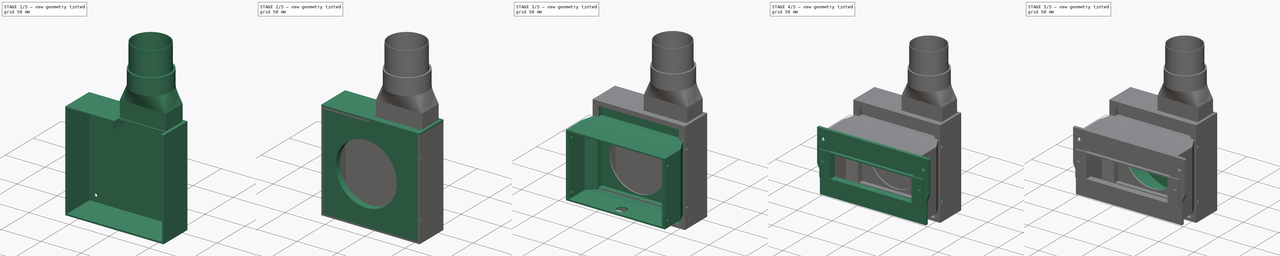
[diagram: build sequence overview — one tinted view per stage of 5, left to right]
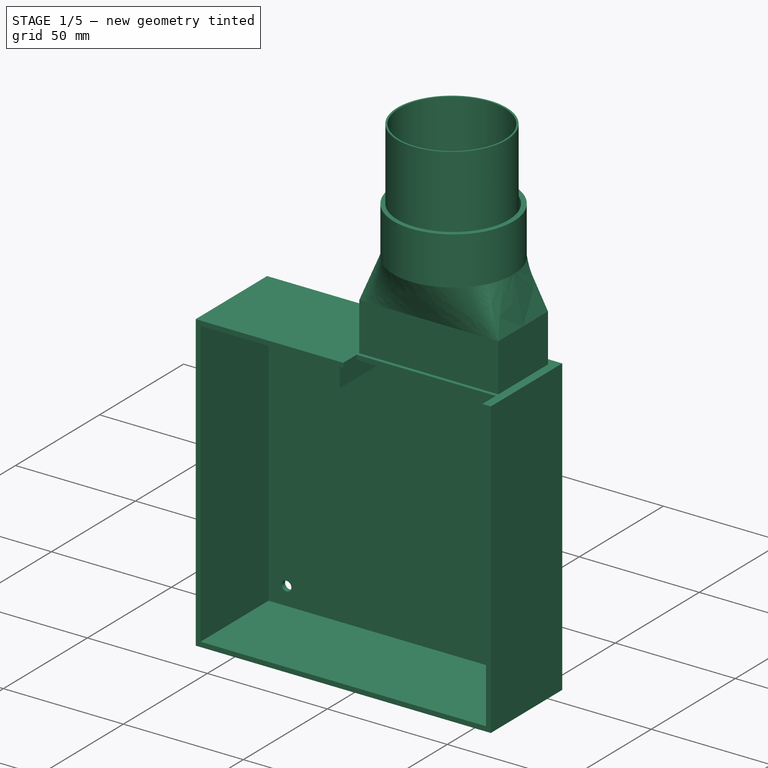
[diagram: stage 1 of 5 — iso view after this stage's code; geometry added in this stage tinted green]
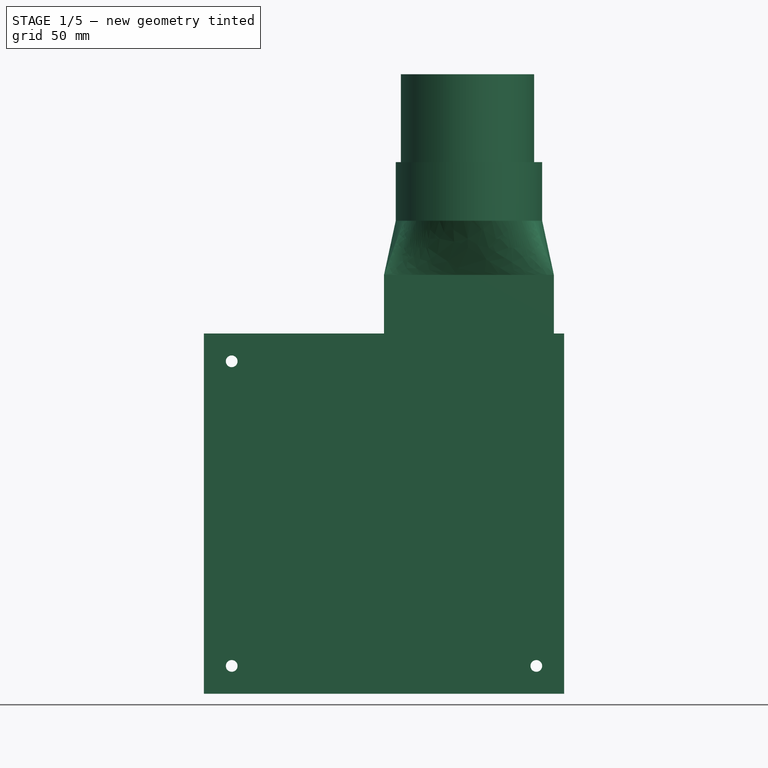
[diagram: stage 1 of 5 — front view after this stage's code; geometry added in this stage tinted green]
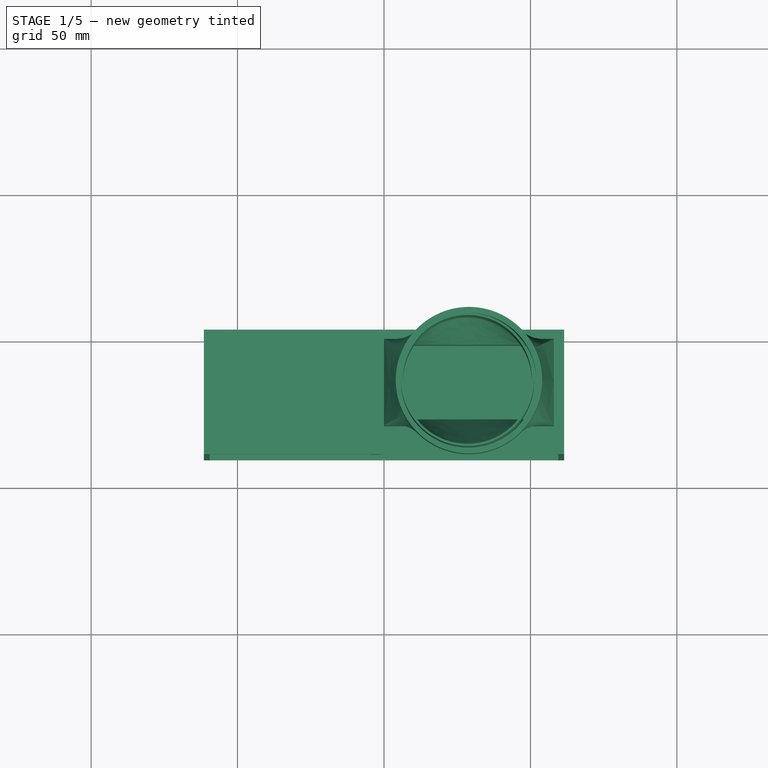
[diagram: stage 1 of 5 — top view after this stage's code; geometry added in this stage tinted green]
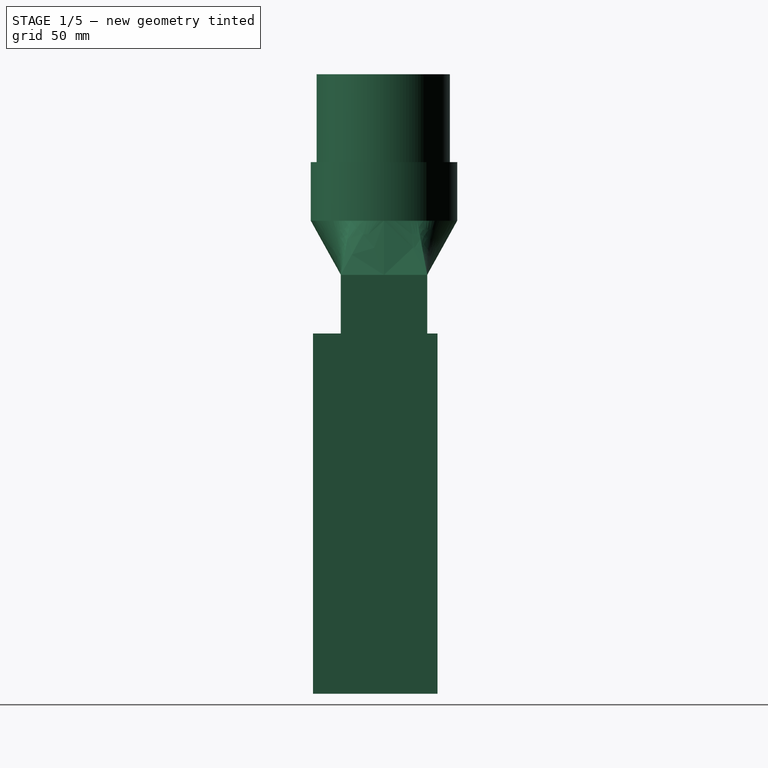
[diagram: stage 1 of 5 — right view after this stage's code; geometry added in this stage tinted green]
FCSTD DOCUMENT  (FreeCAD 0.21R33771 (Git))
Label: RadialExhaustV2.3
License: All rights reserved
LicenseURL: http://en.wikipedia.org/wiki/All_rights_reserved
objects: Sketcher::SketchObject×30, PartDesign::Pad×17, PartDesign::Pocket×14, PartDesign::Body×7, PartDesign::Fillet×2, PartDesign::AdditiveLoft×2, PartDesign::Mirrored×2, PartDesign::MultiTransform×1
note: 110 computed .brp shape members not serialized (recipe doc carries the construction recipe); baked Part::Feature solids carry a one-line shape summary decoded from their .brp

FEATURE [PartDesign::Body] Body  label="FanBody"
  Group = -> [Sketch,Pad,Sketch001,Pad001,Sketch002,Pocket,Sketch003,Pocket001,Fillet]
  Origin = -> Origin
  Tip = -> Fillet
FEATURE [Sketcher::SketchObject] Sketch004  label="CasingBackSketch"
  FullyConstrained = true
  MapMode = 5
  Placement = pos=(0,0,0) rot=(1,0,0;1.5708rad)
  Support = -> [XZ_Plane001]
  expr: .Constraints.height = <<FanBackSketch>>.Constraints.height + 2 mm + 2 mm
  expr: .Constraints.width = <<FanBackSketch>>.Constraints.width + 4 mm
  expr: Constraints[13] = <<FanBackSketch>>.Constraints.skrewDiameter
  expr: Constraints[14] = <<FanBackSketch>>.Constraints.skrewOffset
  expr: Constraints[15] = <<FanBackSketch>>.Constraints.skrewOffset
  expr: Constraints[20] = <<FanBackSketch>>.Constraints.width / 2 + 2 mm
  sketch-geometry (8):
    g0: LineSegment StartX=-61.5 StartY=61.5 StartZ=0 EndX=-61.5 EndY=-61.5 EndZ=0
    g1: LineSegment StartX=-61.5 StartY=-61.5 StartZ=0 EndX=61.5 EndY=-61.5 EndZ=0
    g2: LineSegment StartX=61.5 StartY=-61.5 StartZ=0 EndX=61.5 EndY=61.5 EndZ=0
    g3: LineSegment StartX=61.5 StartY=61.5 StartZ=0 EndX=-61.5 EndY=61.5 EndZ=0
    g4: GeomPoint X=0 Y=0 Z=0
    g5: Circle CenterX=-52 CenterY=52 CenterZ=0 NormalX=0 NormalY=0 NormalZ=1 AngleXU=0 Radius=2
    g6: Circle CenterX=-52 CenterY=-52 CenterZ=0 NormalX=0 NormalY=0 NormalZ=1 AngleXU=0 Radius=2
    g7: Circle CenterX=52 CenterY=-52 CenterZ=0 NormalX=0 NormalY=0 NormalZ=1 AngleXU=0 Radius=2
  constraints (21):
    c: Coincident(g0,g1)
    c: Coincident(g1,g2)
    c: Coincident(g2,g3)
    c: Coincident(g3,g0)
    c: Horizontal(g1)
    c: Horizontal(g3)
    c: Vertical(g0)
    c: Vertical(g2)
    c: Coincident(g4,g-1)
    c: DistanceY(g0,g0) = 123  'height'
    c: DistanceX(g3,g3) = 123  'width'
    c: Equal(g5,g6)
    c: Equal(g5,g7)
    c: Diameter(g5) = 4
    c: DistanceY(g6,g4) = 52
    c: DistanceX(g6,g4) = 52
    c: Vertical(g6,g5)
    c: Horizontal(g6,g7)
    c: Symmetric(g7,g5,g4)
    c: DistanceY(g1,g4) = 61.5
    c: DistanceX(g0,g4) = 61.5
FEATURE [PartDesign::Pad] Pad002  label="CasingBackPad"
  Direction = (0,-1,-2e-16)
  Length = 2
  Length2 = 10
  Placement = pos=(0,0,0) rot=(1,0,0;1.5708rad)
  Profile = -> Sketch004
  ReferenceAxis = -> Sketch004 [N_Axis]
  Reversed = true
  Type = 0
FEATURE [Sketcher::SketchObject] Sketch005  label="CasingShellSketch"
  ExternalGeometry = -> [Pad002]
  FullyConstrained = true
  MapMode = 5
  Placement = pos=(0,0,0) rot=(1,0,0;1.5708rad)
  Support = -> [Pad002]
  sketch-geometry (16):
    g0: LineSegment StartX=-61.5 StartY=-61.5 StartZ=0 EndX=61.5 EndY=-61.5 EndZ=0
    g1: LineSegment StartX=61.5 StartY=-61.5 StartZ=0 EndX=61.5 EndY=61.5 EndZ=0
    g2: LineSegment StartX=-61.5 StartY=61.5 StartZ=0 EndX=-61.5 EndY=-61.5 EndZ=0
    g3: LineSegment StartX=58 StartY=61.5 StartZ=0 EndX=61.5 EndY=61.5 EndZ=0
    g4: LineSegment StartX=-61.5 StartY=61.5 StartZ=0 EndX=0 EndY=61.5 EndZ=0
    g5: LineSegment StartX=58 StartY=61.5 StartZ=0 EndX=58 EndY=59.5 EndZ=0
    g6: LineSegment StartX=58 StartY=59.5 StartZ=0 EndX=59.5 EndY=59.5 EndZ=0
    g7: LineSegment StartX=-4.5 StartY=51.5 StartZ=0 EndX=-4.5 EndY=59.5 EndZ=0
    g8: LineSegment StartX=-4.5 StartY=59.5 StartZ=0 EndX=-59.5 EndY=59.5 EndZ=0
    g9: LineSegment StartX=-1.5 StartY=59.5 StartZ=0 EndX=0 EndY=59.5 EndZ=0
    g10: LineSegment StartX=0 StartY=59.5 StartZ=0 EndX=0 EndY=61.5 EndZ=0
    g11: LineSegment StartX=-1.5 StartY=59.5 StartZ=0 EndX=-1.5 EndY=51.5 EndZ=0
    g12: LineSegment StartX=-1.5 StartY=51.5 StartZ=0 EndX=-4.5 EndY=51.5 EndZ=0
    g13: LineSegment StartX=-59.5 StartY=-59.5 StartZ=0 EndX=-59.5 EndY=59.5 EndZ=0
    g14: LineSegment StartX=59.5 StartY=59.5 StartZ=0 EndX=59.5 EndY=-59.5 EndZ=0
    g15: LineSegment StartX=59.5 StartY=-59.5 StartZ=0 EndX=-59.5 EndY=-59.5 EndZ=0
  constraints (47):
    c: Coincident(g0,g-4)
    c: Horizontal(g0)
    c: DistanceX(g-4,g13) = 2
    c: Coincident(g1,g-5)
    c: Coincident(g2,g0)
    c: PointOnObject(g5,g-3)
    c: Coincident(g3,g1)
    c: Coincident(g4,g2)
    c: PointOnObject(g4,g-3)
    c: Horizontal(g4)
    c: Coincident(g8,g13)
    c: DistanceX(g4,g4) = 61.5
    c: DistanceY(g13,g2) = 2
    c: Coincident(g9,g11)
    c: Coincident(g10,g4)
    c: Coincident(g6,g14)
    c: Coincident(g5,g6)
    c: Coincident(g3,g5)
    c: Vertical(g5)
    c: Horizontal(g6)
    c: DistanceX(g14,g1) = 2
    c: DistanceX(g5,g14) = 1.5
    c: Vertical(g2)
    c: DistanceY(g5,g3) = 2
    c: Coincident(g12,g7)
    c: Coincident(g7,g8)
    c: Horizontal(g8)
    c: Vertical(g7)
    c: Coincident(g9,g10)
    c: Coincident(g11,g12)
    c: Horizontal(g12)
    c: Horizontal(g9)
    c: DistanceY(g10,g10) = 2
    c: DistanceX(g9,g9) = 1.5
    c: Vertical(g10)
    c: Vertical(g11)
    c: DistanceY(g11,g11) = 8
    c: DistanceX(g12,g12) = 3
    c: Vertical(g13)
    c: Coincident(g14,g15)
    c: Vertical(g14)
    c: Coincident(g15,g13)
    c: Coincident(g0,g1)
    c: Vertical(g1)
    c: Horizontal(g15)
    c: DistanceY(g0,g14) = 2
    c: DistanceX(g4,g3) = 58  'fanAttachementGapWidth'
FEATURE [PartDesign::Pad] Pad003  label="CasingShellPad"
  BaseFeature = -> Pad002
  Direction = (0,-1,-2e-16)
  Length = 40.5
  Length2 = 10
  Placement = pos=(0,0,0) rot=(1,0,0;1.5708rad)
  Profile = -> Sketch005
  ReferenceAxis = -> Sketch005 [N_Axis]
  Type = 0
FEATURE [Sketcher::SketchObject] Sketch008  label="exhaustBaseSketch"
  AttachmentOffset = pos=(0,0,59.5) rot=(0,0,1;0rad)
  FullyConstrained = true
  MapMode = 5
  Placement = pos=(0,0,59.5) rot=(0,0,1;0rad)
  Support = -> [XY_Plane002]
  expr: Constraints[21] = .Constraints.thickness
  expr: Constraints[22] = .Constraints.thickness
  expr: Constraints[23] = .Constraints.thickness
  sketch-geometry (8):
    g0: LineSegment StartX=-1.5 StartY=0 StartZ=0 EndX=59.5 EndY=0 EndZ=0
    g1: LineSegment StartX=59.5 StartY=0 StartZ=0 EndX=59.5 EndY=-32.5 EndZ=0
    g2: LineSegment StartX=59.5 StartY=-32.5 StartZ=0 EndX=-1.5 EndY=-32.5 EndZ=0
    g3: LineSegment StartX=-1.5 StartY=-32.5 StartZ=0 EndX=-1.5 EndY=0 EndZ=0
    g4: LineSegment StartX=2 StartY=-3.5 StartZ=0 EndX=56 EndY=-3.5 EndZ=0
    g5: LineSegment StartX=56 StartY=-3.5 StartZ=0 EndX=56 EndY=-29 EndZ=0
    g6: LineSegment StartX=56 StartY=-29 StartZ=0 EndX=2 EndY=-29 EndZ=0
    g7: LineSegment StartX=2 StartY=-29 StartZ=0 EndX=2 EndY=-3.5 EndZ=0
  constraints (24):
    c: Coincident(g0,g1)
    c: Coincident(g1,g2)
    c: Coincident(g2,g3)
    c: Coincident(g3,g0)
    c: Horizontal(g0)
    c: Horizontal(g2)
    c: Vertical(g1)
    c: Vertical(g3)
    c: PointOnObject(g0,g-1)
    c: DistanceX(g0,g-1) = 1.5
    c: DistanceY(g3,g3) = 32.5
    c: DistanceX(g2,g2) = 61
    c: Coincident(g4,g5)
    c: Coincident(g5,g6)
    c: Coincident(g6,g7)
    c: Coincident(g7,g4)
    c: Horizontal(g4)
    c: Horizontal(g6)
    c: Vertical(g5)
    c: Vertical(g7)
    c: DistanceX(g0,g4) = 3.5  'thickness'
    c: DistanceY(g4,g0) = 3.5
    c: DistanceX(g5,g1) = 3.5
    c: DistanceY(g1,g5) = 3.5
FEATURE [PartDesign::Pad] Pad006  label="ExhaustBasePad"
  Direction = (0,0,1)
  Length = 2
  Length2 = 10
  Profile = -> Sketch008
  ReferenceAxis = -> Sketch008 [N_Axis]
  Type = 0
FEATURE [Sketcher::SketchObject] Sketch009  label="ExhaustPipeSketch"
  ExternalGeometry = -> [Pad006]
  FullyConstrained = true
  MapMode = 5
  Placement = pos=(0,0,61.5) rot=(0,0,1;0rad)
  Support = -> [Pad006]
  sketch-geometry (8):
    g0: LineSegment StartX=56 StartY=-29 StartZ=0 EndX=2 EndY=-29 EndZ=0
    g1: LineSegment StartX=2 StartY=-29 StartZ=0 EndX=2 EndY=-3.5 EndZ=0
    g2: LineSegment StartX=0 StartY=-1.5 StartZ=0 EndX=58 EndY=-1.5 EndZ=0
    g3: LineSegment StartX=58 StartY=-1.5 StartZ=0 EndX=58 EndY=-31 EndZ=0
    g4: LineSegment StartX=58 StartY=-31 StartZ=0 EndX=0 EndY=-31 EndZ=0
    g5: LineSegment StartX=0 StartY=-31 StartZ=0 EndX=0 EndY=-1.5 EndZ=0
    g6: LineSegment StartX=2 StartY=-3.5 StartZ=0 EndX=56 EndY=-3.5 EndZ=0
    g7: LineSegment StartX=56 StartY=-3.5 StartZ=0 EndX=56 EndY=-29 EndZ=0
  constraints (25):
    c: Coincident(g0,g1)
    c: Horizontal(g0)
    c: Vertical(g1)
    c: Coincident(g2,g3)
    c: Coincident(g3,g4)
    c: Coincident(g4,g5)
    c: Coincident(g5,g2)
    c: Horizontal(g2)
    c: Horizontal(g4)
    c: Vertical(g3)
    c: Vertical(g5)
    c: DistanceY(g3,g0) = 2
    c: DistanceY(g1,g2) = 2
    c: DistanceY(g3,g3) = 29.5  'exhaustHeight'
    c: Vertical(g-1,g2)
    c: DistanceX(g2,g1) = 2
    c: Horizontal(g1,g-3)
    c: Coincident(g6,g1)
    c: Horizontal(g6)
    c: Coincident(g7,g6)
    c: Coincident(g7,g0)
    c: Vertical(g7)
    c: DistanceX(g2,g2) = 58  'exhaustWidth'
    c: DistanceX(g0,g3) = 2
    c: DistanceY(g2,g-1) = 1.5  'centerOffset'
FEATURE [PartDesign::Pad] Pad007  label="ExhaustPipePad"
  BaseFeature = -> Pad006
  Direction = (0,0,1)
  Length = 20
  Length2 = 10
  Profile = -> Sketch009
  ReferenceAxis = -> Sketch009 [N_Axis]
  Type = 0
FEATURE [PartDesign::Body] Body001  label="FanCasing"
  Group = -> [Sketch004,Pad002,Sketch005,Pad003,Sketch014,Pocket002,Sketch015,Pocket003,Sketch027,Pad017,Pocket008,Sketch036,Pocket014]
  Origin = -> Origin001
  Tip = -> Pocket014
FEATURE [Sketcher::SketchObject] Sketch037  label="OutflowPipesketch"
  AttachmentOffset = pos=(0,0,100) rot=(0,0,1;0rad)
  ExternalGeometry = -> [Pad007]
  FullyConstrained = true
  MapMode = 5
  Placement = pos=(0,0,100) rot=(0,0,1;0rad)
  Support = -> [XY_Plane002]
  sketch-geometry (2):
    g0: Circle CenterX=29 CenterY=-16.25 CenterZ=0 NormalX=0 NormalY=0 NormalZ=1 AngleXU=0 Radius=25
    g1: Circle CenterX=29 CenterY=-16.25 CenterZ=0 NormalX=0 NormalY=0 NormalZ=1 AngleXU=0 Radius=23
  constraints (4):
    c: Symmetric(g-5,g-4,g0)
    c: Diameter(g0) = 50
    c: Coincident(g1,g0)
    c: Diameter(g1) = 46
FEATURE [PartDesign::AdditiveLoft] AdditiveLoft  label="OutflowLoft"
  BaseFeature = -> Pad007
  Closed = false
  Profile = -> Pad007 [Face19]
  Ruled = false
  Sections = -> [Sketch037]
FEATURE [PartDesign::Pad] Pad022  label="OutflowPipePad"
  BaseFeature = -> AdditiveLoft
  Direction = (0,0,1)
  Length = 20
  Length2 = 10
  Profile = -> AdditiveLoft [Face29]
  Type = 0
FEATURE [PartDesign::Body] Body002  label="ExhaustPipe"
  Group = -> [Sketch008,Pad006,Sketch009,Pad007,Sketch037,AdditiveLoft,Pad022]
  Origin = -> Origin002
  Tip = -> Pad022
FEATURE [Sketcher::SketchObject] Sketch038  label="PipeToExhaustSketch"
  AttachmentOffset = pos=(0,0,100) rot=(0,0,1;0rad)
  FullyConstrained = true
  MapMode = 5
  Placement = pos=(0,0,100) rot=(0,0,1;0rad)
  Support = -> [XY_Plane007]
  sketch-geometry (2):
    g0: Circle CenterX=28.5 CenterY=-16.5 CenterZ=0 NormalX=0 NormalY=0 NormalZ=1 AngleXU=0 Radius=22.75
    g1: Circle CenterX=28.5 CenterY=-16.5 CenterZ=0 NormalX=0 NormalY=0 NormalZ=1 AngleXU=0 Radius=22
  constraints (5):
    c: Diameter(g0) = 45.5
    c: Coincident(g1,g0)
    c: Diameter(g1) = 44
    c: DistanceX(g-1,g0) = 28.5
    c: DistanceY(g0,g-1) = 16.5
FEATURE [PartDesign::Pad] Pad023
  Direction = (0,0,1)
  Length = 50
  Length2 = 10
  Profile = -> Sketch038
  ReferenceAxis = -> Sketch038 [N_Axis]
  Type = 0
FEATURE [PartDesign::Body] Body007  label="PipeToExhaust"
  Group = -> [Sketch038,Pad023]
  Origin = -> Origin007
  Tip = -> Pad023
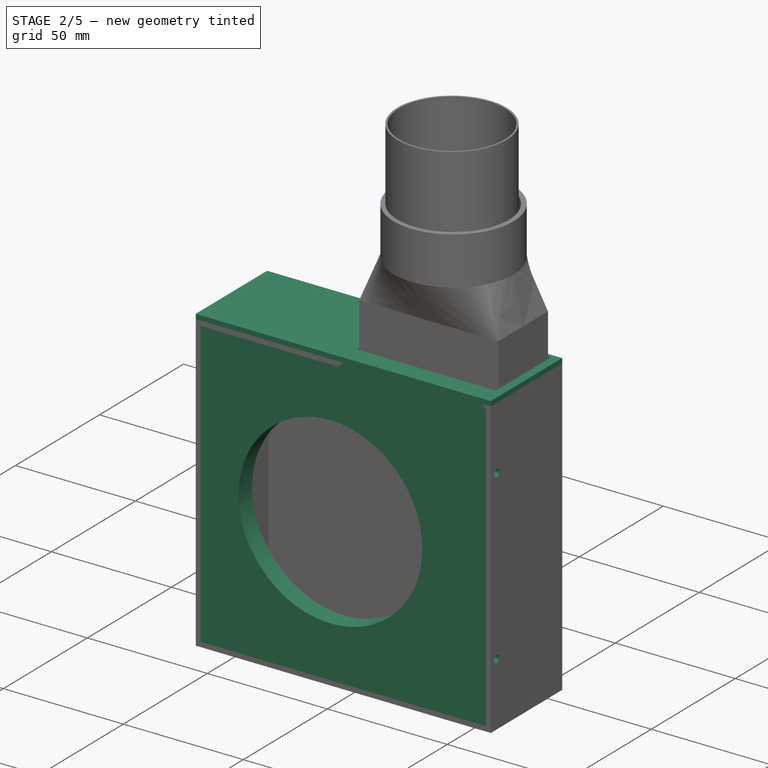
[diagram: stage 2 of 5 — iso view after this stage's code; geometry added in this stage tinted green]
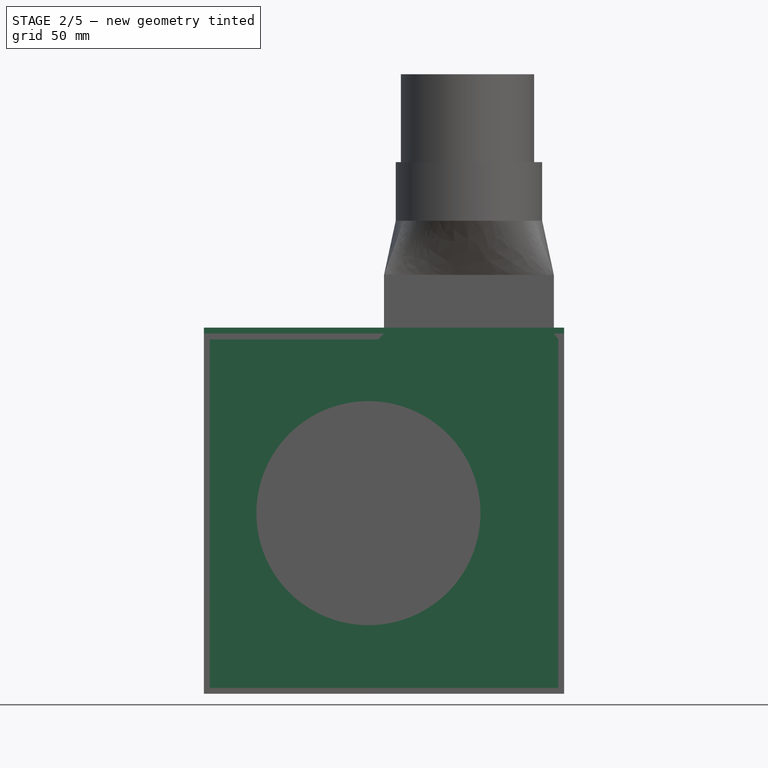
[diagram: stage 2 of 5 — front view after this stage's code; geometry added in this stage tinted green]
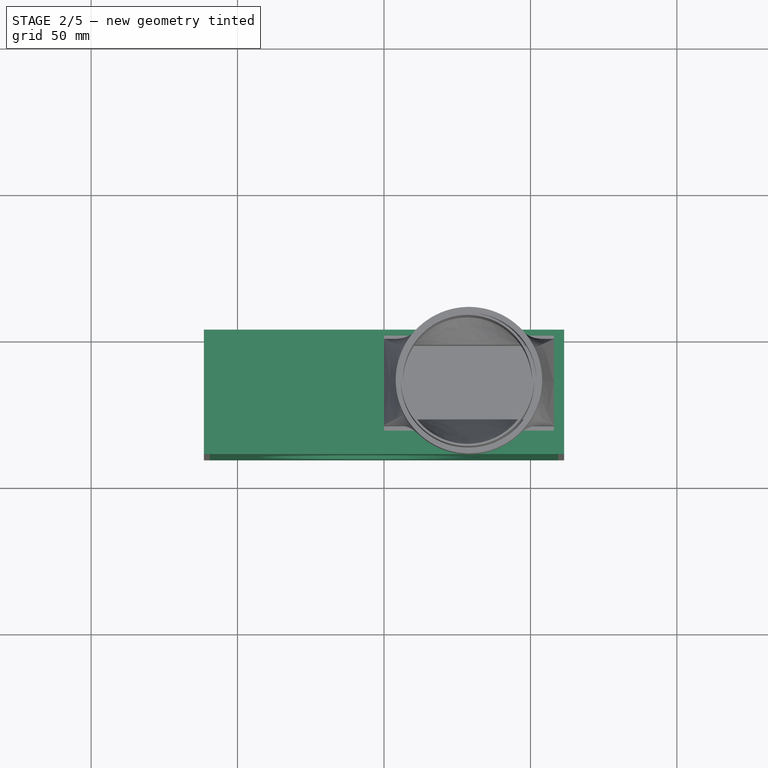
[diagram: stage 2 of 5 — top view after this stage's code; geometry added in this stage tinted green]
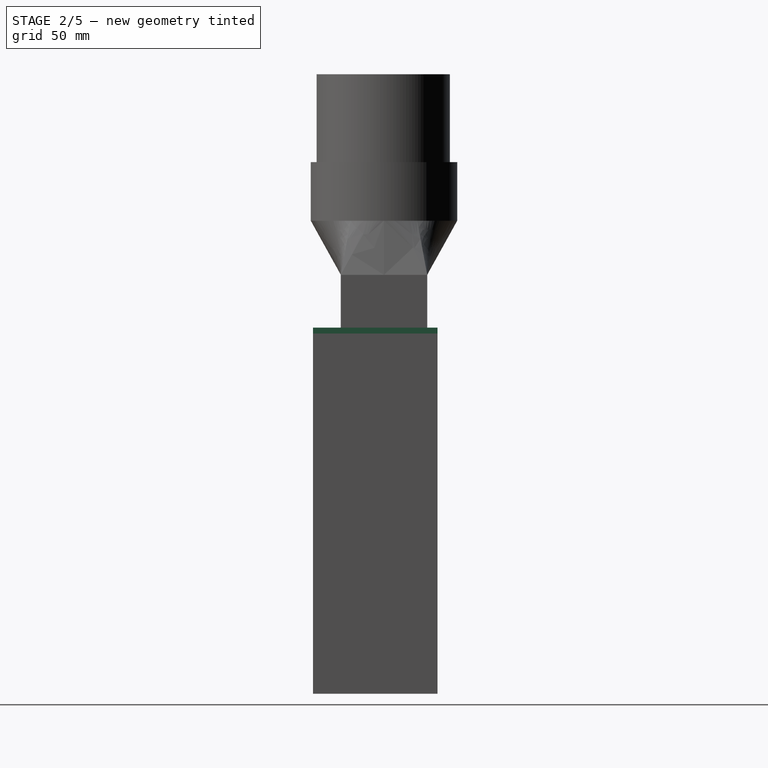
[diagram: stage 2 of 5 — right view after this stage's code; geometry added in this stage tinted green]
FEATURE [Sketcher::SketchObject] Sketch  label="FanBackSketch"
  FullyConstrained = true
  MapMode = 5
  Placement = pos=(0,0,0) rot=(1,0,0;1.5708rad)
  Support = -> [XZ_Plane]
  sketch-geometry (8):
    g0: LineSegment StartX=59.5 StartY=-59.5 StartZ=0 EndX=59.5 EndY=59.5 EndZ=0
    g1: LineSegment StartX=59.5 StartY=59.5 StartZ=0 EndX=-59.5 EndY=59.5 EndZ=0
    g2: LineSegment StartX=-59.5 StartY=59.5 StartZ=0 EndX=-59.5 EndY=-59.5 EndZ=0
    g3: LineSegment StartX=-59.5 StartY=-59.5 StartZ=0 EndX=59.5 EndY=-59.5 EndZ=0
    g4: GeomPoint X=0 Y=0 Z=0
    g5: Circle CenterX=-52 CenterY=52 CenterZ=0 NormalX=0 NormalY=0 NormalZ=1 AngleXU=0 Radius=2
    g6: Circle CenterX=52 CenterY=-52 CenterZ=0 NormalX=0 NormalY=0 NormalZ=1 AngleXU=0 Radius=2
    g7: Circle CenterX=-52 CenterY=-52 CenterZ=0 NormalX=0 NormalY=0 NormalZ=1 AngleXU=0 Radius=2
  constraints (22):
    c: Coincident(g0,g1)
    c: Coincident(g1,g2)
    c: Coincident(g2,g3)
    c: Coincident(g3,g0)
    c: Horizontal(g1)
    c: Horizontal(g3)
    c: Vertical(g0)
    c: Vertical(g2)
    c: Symmetric(g1,g0,g4)
    c: Coincident(g4,g-1)
    c: DistanceY(g2,g2) = 119  'height'
    c: DistanceX(g1,g1) = 119  'width'
    c: Equal(g5,g7)
    c: Equal(g5,g6)
    c: Diameter(g5) = 4  'skrewDiameter'
    c: Vertical(g5,g7)
    c: Horizontal(g7,g6)
    c: DistanceX(g2,g7) = 7.5
    c: DistanceY(g2,g7) = 7.5
    c: DistanceY(g5,g1) = 7.5
    c: DistanceX(g6,g0) = 7.5
    c: DistanceX(g7,g4) = 52  'skrewOffset'
FEATURE [PartDesign::Pad] Pad  label="FanBackPad"
  Direction = (0,-1,-2e-16)
  Length = 5
  Length2 = 10
  Placement = pos=(0,0,0) rot=(1,0,0;1.5708rad)
  Profile = -> Sketch
  ReferenceAxis = -> Sketch [N_Axis]
  Type = 0
FEATURE [Sketcher::SketchObject] Sketch014  label="CutoffSketch"
  AttachmentOffset = pos=(0,0,32.5) rot=(0,0,1;0rad)
  ExternalGeometry = -> [Pad003]
  FullyConstrained = true
  MapMode = 5
  Placement = pos=(0,-32.5,-7.2e-15) rot=(1,0,0;1.5708rad)
  Support = -> [XZ_Plane001]
  sketch-geometry (4):
    g0: LineSegment StartX=-59.5 StartY=59.5 StartZ=0 EndX=59.5 EndY=59.5 EndZ=0
    g1: LineSegment StartX=59.5 StartY=59.5 StartZ=0 EndX=59.5 EndY=-59.5 EndZ=0
    g2: LineSegment StartX=59.5 StartY=-59.5 StartZ=0 EndX=-59.5 EndY=-59.5 EndZ=0
    g3: LineSegment StartX=-59.5 StartY=-59.5 StartZ=0 EndX=-59.5 EndY=59.5 EndZ=0
  constraints (10):
    c: Coincident(g0,g1)
    c: Coincident(g1,g2)
    c: Coincident(g2,g3)
    c: Coincident(g3,g0)
    c: Horizontal(g0)
    c: Horizontal(g2)
    c: Vertical(g1)
    c: Vertical(g3)
    c: Coincident(g0,g-3)
    c: Coincident(g1,g-4)
FEATURE [PartDesign::Pocket] Pocket002  label="CutoffPocket"
  BaseFeature = -> Pad003
  Direction = (0,1,2e-16)
  Length = 5
  Length2 = 5
  Placement = pos=(0,0,0) rot=(1,0,0;1.5708rad)
  Profile = -> Sketch014
  ReferenceAxis = -> Sketch014 [N_Axis]
  Reversed = true
  Type = 1
FEATURE [Sketcher::SketchObject] Sketch015  label="FrontSkrewSketch"
  ExternalGeometry = -> [Pocket002]
  FullyConstrained = true
  MapMode = 5
  Placement = pos=(61.5,0,0) rot=(0.707107,0,0.707107;3.14159rad)
  Support = -> [Pocket002]
  expr: .Constraints.topOffset = .Constraints.screwDiameter / 2 + 2 mm
  sketch-geometry (2):
    g0: Circle CenterX=-35 CenterY=37 CenterZ=0 NormalX=0 NormalY=0 NormalZ=1 AngleXU=0 Radius=1.5
    g1: Circle CenterX=35 CenterY=37 CenterZ=0 NormalX=0 NormalY=0 NormalZ=1 AngleXU=0 Radius=1.5
  constraints (5):
    c: Symmetric(g0,g1,g-2)
    c: Equal(g0,g1)
    c: Diameter(g0) = 3  'screwDiameter'
    c: DistanceY(g0,g-3) = 3.5  'topOffset'
    c: DistanceX(g0,g1) = 70  'centerOffset'
FEATURE [PartDesign::Pocket] Pocket003  label="FrontSkrewPocket"
  BaseFeature = -> Pocket002
  Direction = (-1,0,2e-16)
  Length = 5
  Length2 = 5
  Placement = pos=(0,0,0) rot=(1,0,0;1.5708rad)
  Profile = -> Sketch015
  ReferenceAxis = -> Sketch015 [N_Axis]
  Type = 1
FEATURE [Sketcher::SketchObject] Sketch016  label="FrontBaseSketch"
  AttachmentOffset = pos=(0,0,32.5) rot=(0,0,1;0rad)
  FullyConstrained = true
  MapMode = 5
  Placement = pos=(0,-32.5,-7.2e-15) rot=(1,0,0;1.5708rad)
  Support = -> [XZ_Plane004]
  expr: Constraints[21] = <<FanShellSketch>>.Constraints.inntakeDiameter
  expr: Constraints[22] = <<FanShellSketch>>.Constraints.inntakeHeightOffset
  expr: Constraints[23] = <<FanShellSketch>>.Constraints.inntakeWidthOffset
  expr: Constraints[8] = <<FanBackSketch>>.Constraints.height
  expr: Constraints[9] = <<FanBackSketch>>.Constraints.width + 0.5 mm
  sketch-geometry (15):
    g0: LineSegment StartX=-59.5 StartY=59.5 StartZ=0 EndX=-59.5 EndY=-59.5 EndZ=0
    g1: LineSegment StartX=-59.5 StartY=-59.5 StartZ=0 EndX=59.5 EndY=-59.5 EndZ=0
    g2: GeomPoint X=0 Y=0 Z=0
    g3: LineSegment StartX=60 StartY=61.5 StartZ=0 EndX=58 EndY=61.5 EndZ=0
    g4: LineSegment StartX=58 StartY=61.5 StartZ=0 EndX=58 EndY=63.5 EndZ=0
    g5: LineSegment StartX=58 StartY=63.5 StartZ=0 EndX=0 EndY=63.5 EndZ=0
    g6: GeomPoint X=0 Y=0 Z=0
    g7: Circle CenterX=-5.32 CenterY=0.16 CenterZ=0 NormalX=0 NormalY=0 NormalZ=1 AngleXU=0 Radius=38.25
    g8: LineSegment StartX=59.5 StartY=-59.5 StartZ=0 EndX=59.5 EndY=59.5 EndZ=0
    g9: LineSegment StartX=59.5 StartY=59.5 StartZ=0 EndX=60 EndY=59.5 EndZ=0
    g10: LineSegment StartX=60 StartY=59.5 StartZ=0 EndX=60 EndY=61.5 EndZ=0
    g11: LineSegment StartX=-2 StartY=61.5 StartZ=0 EndX=-2 EndY=59.5 EndZ=0
    g12: LineSegment StartX=-2 StartY=59.5 StartZ=0 EndX=-59.5 EndY=59.5 EndZ=0
    g13: LineSegment StartX=0 StartY=63.5 StartZ=0 EndX=0 EndY=61.5 EndZ=0
    g14: LineSegment StartX=0 StartY=61.5 StartZ=0 EndX=-2 EndY=61.5 EndZ=0
  constraints (40):
    c: Coincident(g10,g3)
    c: Coincident(g12,g0)
    c: Coincident(g0,g1)
    c: Coincident(g1,g8)
    c: Horizontal(g1)
    c: Vertical(g0)
    c: Symmetric(g12,g8,g2)
    c: Coincident(g2,g-1)
    c: DistanceY(g0,g0) = 119
    c: DistanceX(g12,g3) = 119.5
    c: Coincident(g14,g11)
    c: Coincident(g5,g13)
    c: Coincident(g3,g4)
    c: Coincident(g4,g5)
    c: Horizontal(g5)
    c: Vertical(g4)
    c: Horizontal(g3)
    c: DistanceX(g3,g3) = 2
    c: DistanceY(g4,g4) = 2
    c: DistanceY(g14,g13) = 2
    c: Coincident(g6,g2)
    c: Diameter(g7) = 76.5
    c: DistanceY(g2,g7) = 0.16
    c: DistanceX(g7,g2) = 5.32
    c: Coincident(g8,g9)
    c: Vertical(g8)
    c: Coincident(g9,g10)
    c: Vertical(g10)
    c: Horizontal(g9)
    c: DistanceX(g8,g9) = 0.5
    c: DistanceY(g10,g10) = 2
    c: Coincident(g11,g12)
    c: Horizontal(g12)
    c: Coincident(g13,g14)
    c: Vertical(g13)
    c: DistanceY(g11,g11) = 2
    c: Vertical(g11)
    c: Horizontal(g14)
    c: DistanceX(g14,g14) = 2
    c: DistanceX(g12,g12) = 57.5
FEATURE [PartDesign::Pad] Pad010  label="FrontBasePad"
  Direction = (0,-1,-2e-16)
  Length = 8
  Length2 = 10
  Placement = pos=(0,0,0) rot=(1,0,0;1.5708rad)
  Profile = -> Sketch016
  ReferenceAxis = -> Sketch016 [N_Axis]
  Type = 0
FEATURE [Sketcher::SketchObject] Sketch027
  ExternalGeometry = -> [Pocket003]
  FullyConstrained = true
  MapMode = 5
  Placement = pos=(0,-1.37e-14,61.5) rot=(0,0,1;3.14159rad)
  Support = -> [Pocket003]
  sketch-geometry (4):
    g0: LineSegment StartX=-60 StartY=0 StartZ=0 EndX=2 EndY=0 EndZ=0
    g1: LineSegment StartX=2 StartY=0 StartZ=0 EndX=2 EndY=40.5 EndZ=0
    g2: LineSegment StartX=2 StartY=40.5 StartZ=0 EndX=-60 EndY=40.5 EndZ=0
    g3: LineSegment StartX=-60 StartY=40.5 StartZ=0 EndX=-60 EndY=0 EndZ=0
  constraints (12):
    c: Coincident(g0,g1)
    c: Coincident(g1,g2)
    c: Coincident(g2,g3)
    c: Coincident(g3,g0)
    c: Horizontal(g0)
    c: Horizontal(g2)
    c: Vertical(g1)
    c: Vertical(g3)
    c: DistanceY(g2,g-4) = 0
    c: DistanceX(g-1,g0) = 2
    c: DistanceX(g0,g-4) = 2
    c: Horizontal(g0,g-1)
FEATURE [PartDesign::Pad] Pad017
  BaseFeature = -> Pocket003
  Direction = (0,-2e-16,1)
  Length = 2
  Length2 = 10
  Placement = pos=(0,0,0) rot=(1,0,0;1.5708rad)
  Profile = -> Pocket003 [Face7,Face2,Face9]
  Type = 0
FEATURE [PartDesign::Pocket] Pocket008
  BaseFeature = -> Pad017
  Direction = (0,2e-16,-1)
  Length = 2
  Length2 = 5
  Placement = pos=(0,0,0) rot=(1,0,0;1.5708rad)
  Profile = -> Sketch027
  ReferenceAxis = -> Sketch027 [N_Axis]
  Type = 0
FEATURE [PartDesign::Body] Body004  label="InntakeBox"
  Group = -> [Sketch016,Pad010,Sketch018,Pocket005,Sketch019,Pocket006,Sketch021,Pad012,Sketch022,AdditiveLoft001,Pad018,Sketch028,Pocket009,Sketch031,Pocket011,Sketch034,Pocket012,Sketch035,Pocket013]
  Origin = -> Origin004
  Tip = -> Pocket013
FEATURE [Sketcher::SketchObject] Sketch036  label="FanPowerCableSketch"
  ExternalGeometry = -> [Pocket008]
  FullyConstrained = true
  MapMode = 5
  Placement = pos=(0,2,4e-16) rot=(-1,0,0;1.5708rad)
  Support = -> [Pocket008]
  sketch-geometry (5):
    g0: LineSegment StartX=25.75 StartY=35.75 StartZ=0 EndX=25.75 EndY=25.75 EndZ=0
    g1: LineSegment StartX=25.75 StartY=25.75 StartZ=0 EndX=35.75 EndY=25.75 EndZ=0
    g2: LineSegment StartX=35.75 StartY=25.75 StartZ=0 EndX=35.75 EndY=35.75 EndZ=0
    g3: LineSegment StartX=35.75 StartY=35.75 StartZ=0 EndX=25.75 EndY=35.75 EndZ=0
    g4: GeomPoint X=30.75 Y=30.75 Z=0
  constraints (12):
    c: Coincident(g0,g1)
    c: Coincident(g1,g2)
    c: Coincident(g2,g3)
    c: Coincident(g3,g0)
    c: Horizontal(g1)
    c: Horizontal(g3)
    c: Vertical(g0)
    c: Vertical(g2)
    c: Symmetric(g1,g0,g4)
    c: Equal(g1,g0)
    c: DistanceY(g2,g2) = 10
    c: Symmetric(g-1,g-3,g4)
FEATURE [PartDesign::Pocket] Pocket014  label="FanPowerCablePocket"
  BaseFeature = -> Pocket008
  Direction = (0,-1,-2e-16)
  Length = 5
  Length2 = 5
  Placement = pos=(0,0,0) rot=(1,0,0;1.5708rad)
  Profile = -> Sketch036
  ReferenceAxis = -> Sketch036 [N_Axis]
  Type = 0
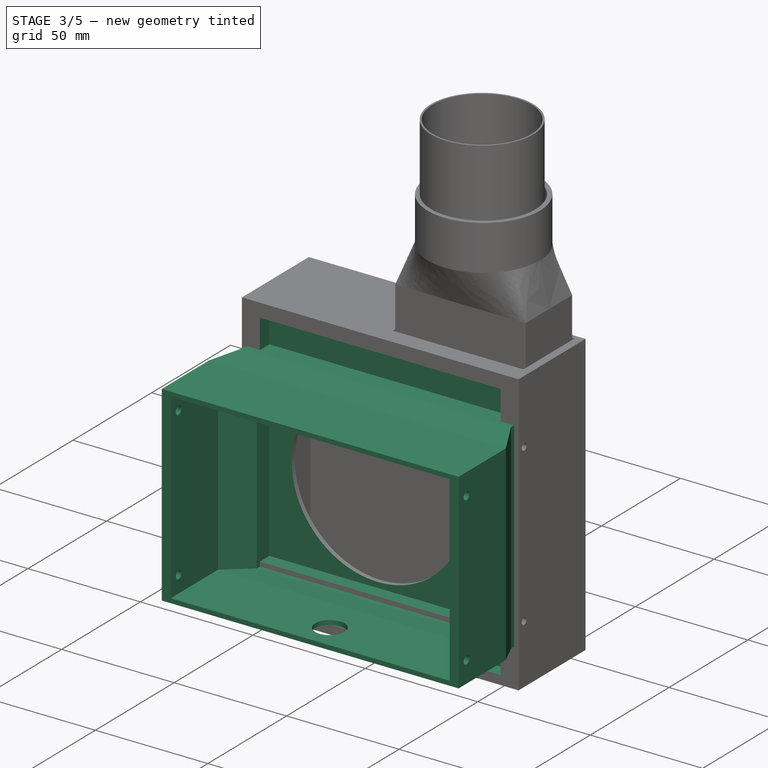
[diagram: stage 3 of 5 — iso view after this stage's code; geometry added in this stage tinted green]
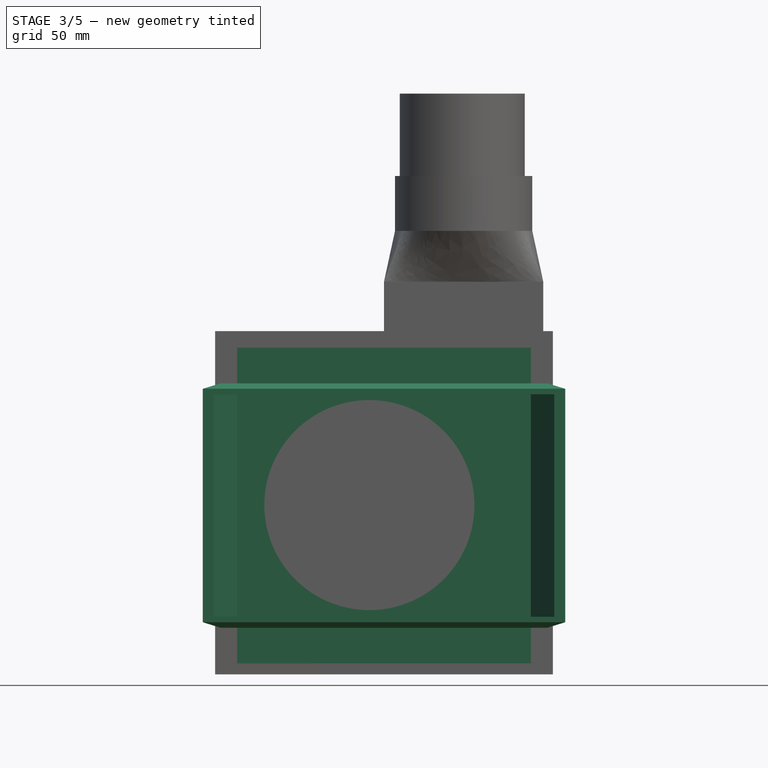
[diagram: stage 3 of 5 — front view after this stage's code; geometry added in this stage tinted green]
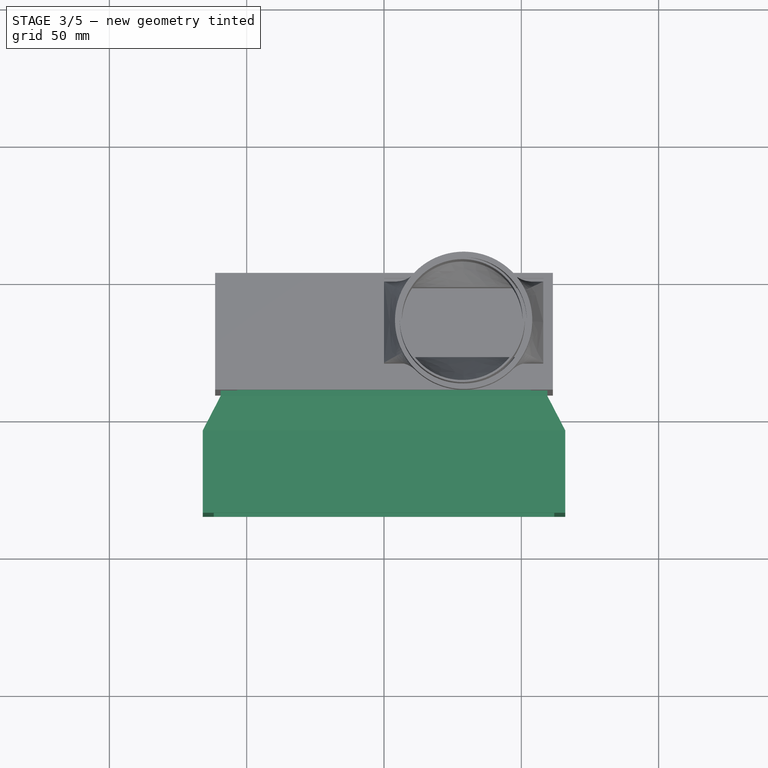
[diagram: stage 3 of 5 — top view after this stage's code; geometry added in this stage tinted green]
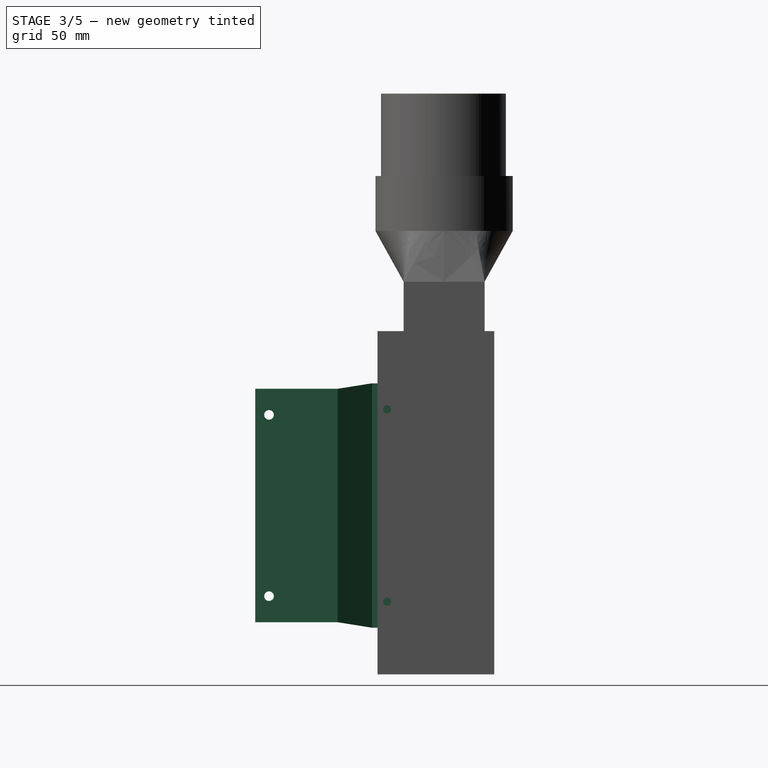
[diagram: stage 3 of 5 — right view after this stage's code; geometry added in this stage tinted green]
FEATURE [Sketcher::SketchObject] Sketch018  label="FrontRightHeatInsertSketch"
  FullyConstrained = false
  MapMode = 5
  Placement = pos=(59.5,0,0) rot=(0.707107,0,0.707107;3.14159rad)
  sketch-geometry (2):
    g0: Circle CenterX=-35 CenterY=36.8 CenterZ=0 NormalX=0 NormalY=0 NormalZ=1 AngleXU=0 Radius=2.2
    g1: Circle CenterX=35 CenterY=36.8 CenterZ=0 NormalX=0 NormalY=0 NormalZ=1 AngleXU=0 Radius=2.2
  constraints (4):
    c: Symmetric(g0,g1,g-2)
    c: DistanceX(g0,g1) = 70  'holeOffset'
    c: Equal(g0,g1)
    c: Diameter(g0) = 4.4  'insertDiameter'
FEATURE [PartDesign::Pocket] Pocket005  label="FrontRightHeatInsertPocket"
  BaseFeature = -> Pad010
  Direction = (-1,0,2e-16)
  Length = 5
  Length2 = 5
  Placement = pos=(0,0,0) rot=(1,0,0;1.5708rad)
  Profile = -> Sketch018
  ReferenceAxis = -> Sketch018 [N_Axis]
  Type = 0
FEATURE [Sketcher::SketchObject] Sketch019  label="FRontLeftHeatInsertSketch"
  ExternalGeometry = -> [Pocket005]
  FullyConstrained = true
  MapMode = 5
  Placement = pos=(-59.5,0,0) rot=(0.707107,0,-0.707107;3.14159rad)
  Support = -> [Pocket005]
  expr: Constraints[2] = <<FrontRightHeatInsertSketch>>.Constraints.insertDiameter
  expr: Constraints[3] = <<FrontRightHeatInsertSketch>>.Constraints.insertDiameter / 2 + 1.5 mm
  expr: Constraints[4] = <<FrontRightHeatInsertSketch>>.Constraints.holeOffset
  sketch-geometry (2):
    g0: Circle CenterX=-35 CenterY=36.8 CenterZ=0 NormalX=0 NormalY=0 NormalZ=1 AngleXU=0 Radius=2.2
    g1: Circle CenterX=35 CenterY=36.8 CenterZ=0 NormalX=0 NormalY=0 NormalZ=1 AngleXU=0 Radius=2.2
  constraints (5):
    c: Symmetric(g0,g1,g-2)
    c: Equal(g0,g1)
    c: Diameter(g0) = 4.4
    c: DistanceY(g0,g-3) = 3.7
    c: DistanceX(g0,g1) = 70
FEATURE [PartDesign::Pocket] Pocket006  label="FrontLeftHeatINsertPocket"
  BaseFeature = -> Pocket005
  Direction = (1,0,2e-16)
  Length = 5
  Length2 = 5
  Placement = pos=(0,0,0) rot=(1,0,0;1.5708rad)
  Profile = -> Sketch019
  ReferenceAxis = -> Sketch019 [N_Axis]
  Type = 0
FEATURE [Sketcher::SketchObject] Sketch021  label="FrontAdaptorSketch"
  FullyConstrained = false
  MapMode = 5
  Placement = pos=(1e-16,-40.5,-9.5e-15) rot=(1,0,0;1.5708rad)
  sketch-geometry (8):
    g0: LineSegment StartX=-59.5 StartY=44.5 StartZ=0 EndX=59.5 EndY=44.5 EndZ=0
    g1: LineSegment StartX=59.5 StartY=44.5 StartZ=0 EndX=59.5 EndY=-44.5 EndZ=0
    g2: LineSegment StartX=59.5 StartY=-44.5 StartZ=0 EndX=-59.5 EndY=-44.5 EndZ=0
    g3: LineSegment StartX=-59.5 StartY=-44.5 StartZ=0 EndX=-59.5 EndY=44.5 EndZ=0
    g4: LineSegment StartX=-53.5 StartY=42.5 StartZ=0 EndX=53.5 EndY=42.5 EndZ=0
    g5: LineSegment StartX=53.5 StartY=42.5 StartZ=0 EndX=53.5 EndY=-42.5 EndZ=0
    g6: LineSegment StartX=53.5 StartY=-42.5 StartZ=0 EndX=-53.5 EndY=-42.5 EndZ=0
    g7: LineSegment StartX=-53.5 StartY=-42.5 StartZ=0 EndX=-53.5 EndY=42.5 EndZ=0
  constraints (16):
    c: Coincident(g0,g1)
    c: Coincident(g1,g2)
    c: Coincident(g2,g3)
    c: Coincident(g3,g0)
    c: Horizontal(g0)
    c: Horizontal(g2)
    c: Vertical(g1)
    c: Vertical(g3)
    c: Coincident(g4,g5)
    c: Coincident(g5,g6)
    c: Coincident(g6,g7)
    c: Coincident(g7,g4)
    c: Horizontal(g4)
    c: Horizontal(g6)
    c: Vertical(g5)
    c: Vertical(g7)
FEATURE [PartDesign::Pad] Pad012  label="FrontAdaptorPad"
  BaseFeature = -> Pocket006
  Direction = (0,-1,-2e-16)
  Length = 2
  Length2 = 10
  Placement = pos=(0,0,0) rot=(1,0,0;1.5708rad)
  Profile = -> Sketch021
  ReferenceAxis = -> Sketch021 [N_Axis]
  Type = 0
FEATURE [PartDesign::AdditiveLoft] AdditiveLoft001  label="FrontBoxLoft"
  BaseFeature = -> Pad012
  Closed = false
  Placement = pos=(0,0,0) rot=(1,0,0;1.5708rad)
  Profile = -> Pad012 [Face22]
  Ruled = false
  Sections = -> [Sketch022]
FEATURE [PartDesign::Pad] Pad018  label="FrontBoxPad"
  BaseFeature = -> AdditiveLoft001
  Direction = (0,-1,-2e-16)
  Length = 30
  Length2 = 10
  Placement = pos=(0,0,0) rot=(1,0,0;1.5708rad)
  Profile = -> AdditiveLoft001 [Face31]
  Type = 0
FEATURE [Sketcher::SketchObject] Sketch028  label="InntakeSlimmingSketch"
  ExternalGeometry = -> [AdditiveLoft001]
  FullyConstrained = true
  MapMode = 5
  Placement = pos=(0,-40.5,-9.5e-15) rot=(1,0,0;1.5708rad)
  Support = -> [AdditiveLoft001]
  sketch-geometry (14):
    g0: LineSegment StartX=53.5 StartY=-40.5 StartZ=0 EndX=53.5 EndY=40.5 EndZ=0
    g1: LineSegment StartX=53.5 StartY=40.5 StartZ=0 EndX=-53.5 EndY=40.5 EndZ=0
    g2: LineSegment StartX=-53.5 StartY=40.5 StartZ=0 EndX=-53.5 EndY=-40.5 EndZ=0
    g3: LineSegment StartX=-53.5 StartY=-40.5 StartZ=0 EndX=53.5 EndY=-40.5 EndZ=0
    g4: GeomPoint X=0 Y=0 Z=0
    g5: GeomPoint X=-53.5 Y=40.5 Z=0
    g6: LineSegment StartX=-53.5 StartY=57.5 StartZ=0 EndX=53.5 EndY=57.5 EndZ=0
    g7: LineSegment StartX=53.5 StartY=57.5 StartZ=0 EndX=53.5 EndY=44.5 EndZ=0
    g8: LineSegment StartX=53.5 StartY=44.5 StartZ=0 EndX=-53.5 EndY=44.5 EndZ=0
    g9: LineSegment StartX=-53.5 StartY=44.5 StartZ=0 EndX=-53.5 EndY=57.5 EndZ=0
    g10: LineSegment StartX=-53.5 StartY=-44.5 StartZ=0 EndX=53.5 EndY=-44.5 EndZ=0
    g11: LineSegment StartX=53.5 StartY=-44.5 StartZ=0 EndX=53.5 EndY=-57.5 EndZ=0
    g12: LineSegment StartX=53.5 StartY=-57.5 StartZ=0 EndX=-53.5 EndY=-57.5 EndZ=0
    g13: LineSegment StartX=-53.5 StartY=-57.5 StartZ=0 EndX=-53.5 EndY=-44.5 EndZ=0
  constraints (35):
    c: Coincident(g0,g1)
    c: Coincident(g1,g2)
    c: Coincident(g2,g3)
    c: Coincident(g3,g0)
    c: Horizontal(g1)
    c: Horizontal(g3)
    c: Vertical(g0)
    c: Vertical(g2)
    c: Symmetric(g1,g0,g4)
    c: Coincident(g4,g-1)
    c: PointOnObject(g5,g-3)
    c: PointOnObject(g5,g-4)
    c: Coincident(g1,g5)
    c: Coincident(g6,g7)
    c: Coincident(g7,g8)
    c: Coincident(g8,g9)
    c: Coincident(g9,g6)
    c: Horizontal(g6)
    c: Vertical(g7)
    c: Vertical(g9)
    c: Coincident(g10,g11)
    c: Coincident(g11,g12)
    c: Coincident(g12,g13)
    c: Coincident(g13,g10)
    c: Horizontal(g12)
    c: Vertical(g11)
    c: Vertical(g13)
    c: Vertical(g-3,g8)
    c: DistanceY(g6,g-8) = 2
    c: Vertical(g12,g2)
    c: DistanceY(g-9,g12) = 2
    c: Symmetric(g10,g10,g-2)
    c: Symmetric(g8,g7,g-2)
    c: Horizontal(g8,g-7)
    c: Horizontal(g10,g-6)
FEATURE [PartDesign::Pocket] Pocket009  label="InntakeSlimmingPocket"
  BaseFeature = -> Pad018
  Direction = (0,1,2e-16)
  Length = 6
  Length2 = 5
  Placement = pos=(0,0,0) rot=(1,0,0;1.5708rad)
  Profile = -> Sketch028
  ReferenceAxis = -> Sketch028 [N_Axis]
  Type = 0
FEATURE [Sketcher::SketchObject] Sketch031
  FullyConstrained = true
  MapMode = 5
  Placement = pos=(66,0,0) rot=(0.707107,0,0.707107;3.14159rad)
  Support = -> [Pocket009]
  sketch-geometry (2):
    g0: Circle CenterX=-33 CenterY=80 CenterZ=0 NormalX=0 NormalY=0 NormalZ=1 AngleXU=0 Radius=1.75
    g1: Circle CenterX=33 CenterY=80 CenterZ=0 NormalX=0 NormalY=0 NormalZ=1 AngleXU=0 Radius=1.75
  constraints (5):
    c: Equal(g0,g1)
    c: Diameter(g0) = 3.5
    c: Symmetric(g0,g1,g-2)
    c: DistanceX(g0,g1) = 66
    c: DistanceY(g-1,g0) = 80
FEATURE [PartDesign::Pocket] Pocket011
  BaseFeature = -> Pocket009
  Direction = (-1,0,2e-16)
  Length = 5
  Length2 = 5
  Placement = pos=(0,0,0) rot=(1,0,0;1.5708rad)
  Profile = -> Sketch031
  ReferenceAxis = -> Sketch031 [N_Axis]
  Type = 1
FEATURE [PartDesign::Body] Body006  label="InternalPlate"
  Group = -> [Sketch032,Pad020,Sketch033,Pad021]
  Origin = -> Origin006
  Tip = -> Pad021
FEATURE [Sketcher::SketchObject] Sketch034  label="PG7Sketch"
  FullyConstrained = true
  MapMode = 5
  Placement = pos=(0,9e-15,-40.5) rot=(0,0,1;3.14159rad)
  Support = -> [Pocket011]
  sketch-geometry (1):
    g0: Circle CenterX=0 CenterY=72.5 CenterZ=0 NormalX=0 NormalY=0 NormalZ=1 AngleXU=0 Radius=6.5
  constraints (3):
    c: PointOnObject(g0,g-2)
    c: Diameter(g0) = 13
    c: DistanceY(g-1,g0) = 72.5
FEATURE [PartDesign::Pocket] Pocket012  label="PG7Pocket"
  BaseFeature = -> Pocket011
  Direction = (0,2e-16,-1)
  Length = 3
  Length2 = 5
  Placement = pos=(0,0,0) rot=(1,0,0;1.5708rad)
  Profile = -> Sketch034
  ReferenceAxis = -> Sketch034 [N_Axis]
  Type = 0
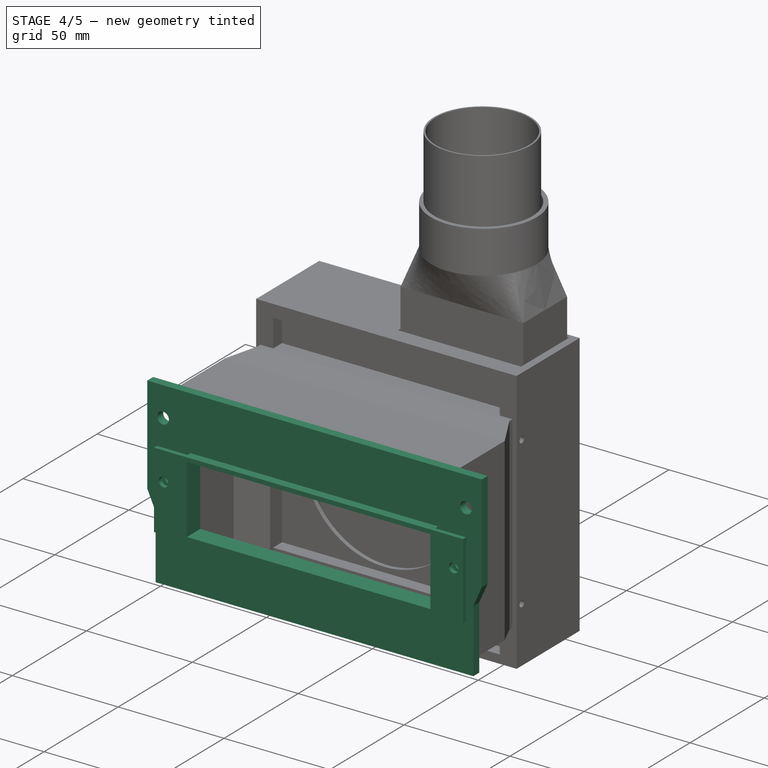
[diagram: stage 4 of 5 — iso view after this stage's code; geometry added in this stage tinted green]
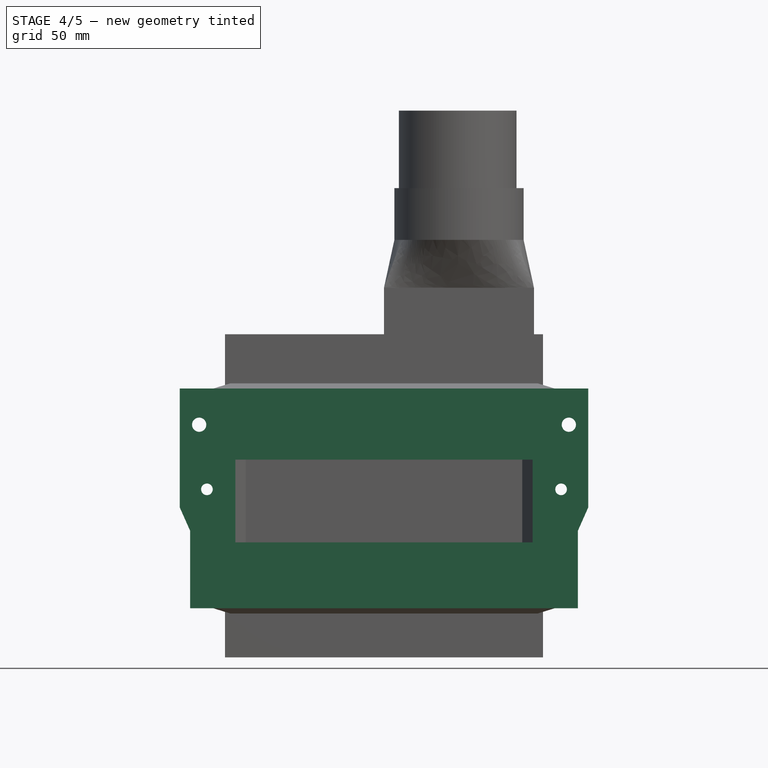
[diagram: stage 4 of 5 — front view after this stage's code; geometry added in this stage tinted green]
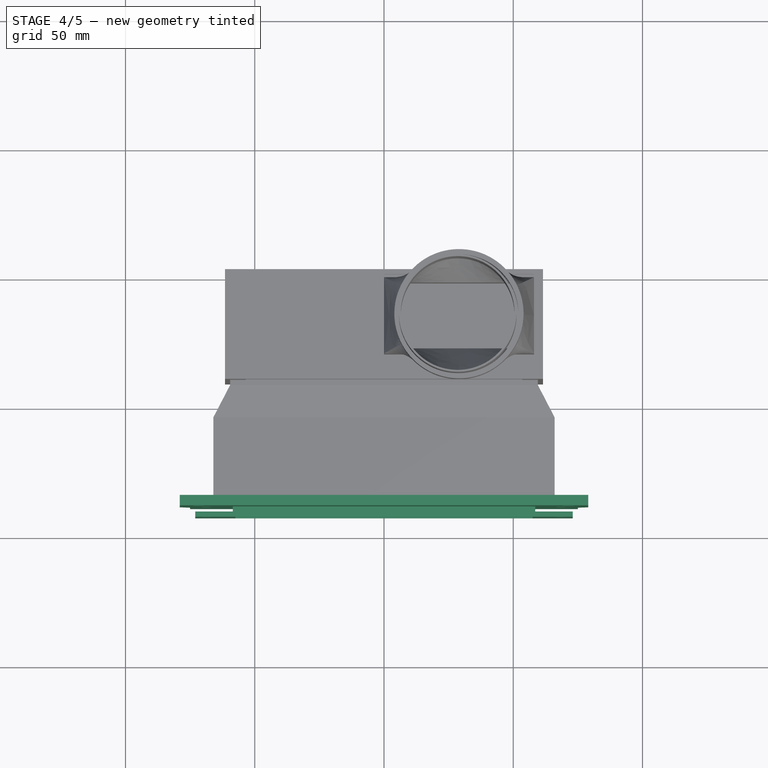
[diagram: stage 4 of 5 — top view after this stage's code; geometry added in this stage tinted green]
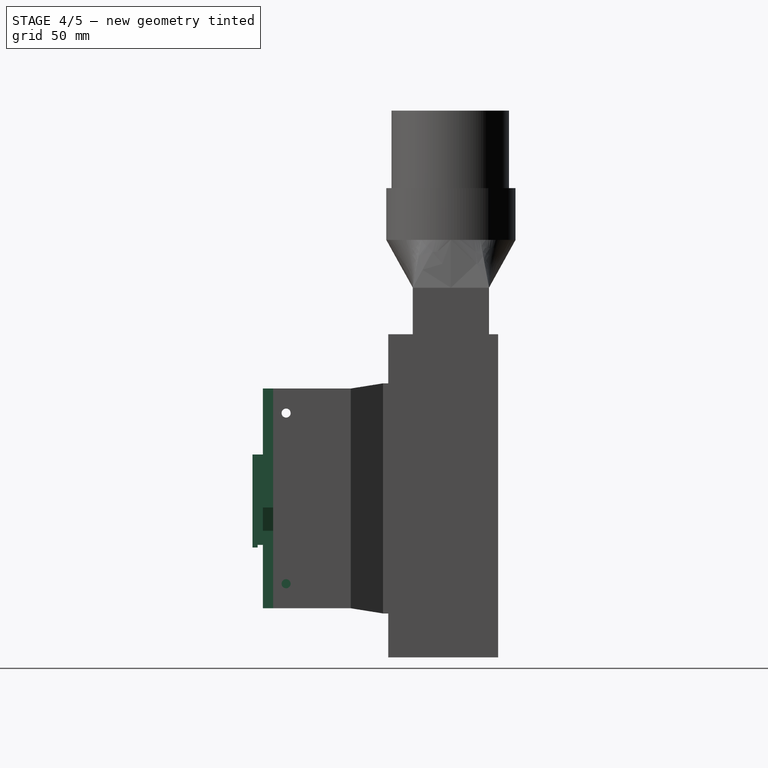
[diagram: stage 4 of 5 — right view after this stage's code; geometry added in this stage tinted green]
FEATURE [Sketcher::SketchObject] Sketch022  label="FrontBoxSketch"
  AttachmentOffset = pos=(0,0,55) rot=(0,0,1;0rad)
  ExternalGeometry = -> [Pad012]
  FullyConstrained = true
  MapMode = 5
  Placement = pos=(0,-55,-1.22e-14) rot=(1,0,0;1.5708rad)
  Support = -> [XZ_Plane004]
  sketch-geometry (11):
    g0: LineSegment StartX=-66 StartY=-42.5 StartZ=0 EndX=-66 EndY=42.5 EndZ=0
    g1: LineSegment StartX=-66 StartY=42.5 StartZ=0 EndX=66 EndY=42.5 EndZ=0
    g2: LineSegment StartX=66 StartY=42.5 StartZ=0 EndX=66 EndY=-42.5 EndZ=0
    g3: LineSegment StartX=66 StartY=-42.5 StartZ=0 EndX=-66 EndY=-42.5 EndZ=0
    g4: GeomPoint X=0 Y=0 Z=0
    g5: GeomPoint X=0 Y=0 Z=0
    g6: LineSegment StartX=-62 StartY=-40.5 StartZ=0 EndX=-62 EndY=40.5 EndZ=0
    g7: LineSegment StartX=-62 StartY=40.5 StartZ=0 EndX=62 EndY=40.5 EndZ=0
    g8: LineSegment StartX=62 StartY=40.5 StartZ=0 EndX=62 EndY=-40.5 EndZ=0
    g9: LineSegment StartX=62 StartY=-40.5 StartZ=0 EndX=-62 EndY=-40.5 EndZ=0
    g10: GeomPoint X=0 Y=0 Z=0
  constraints (27):
    c: Coincident(g0,g1)
    c: Coincident(g1,g2)
    c: Coincident(g2,g3)
    c: Coincident(g3,g0)
    c: Horizontal(g1)
    c: Horizontal(g3)
    c: Vertical(g0)
    c: Vertical(g2)
    c: Symmetric(g1,g0,g4)
    c: Coincident(g4,g-1)
    c: DistanceX(g3,g3) = 132  'Width'
    c: Coincident(g5,g4)
    c: Coincident(g6,g7)
    c: Coincident(g7,g8)
    c: Coincident(g8,g9)
    c: Coincident(g9,g6)
    c: Horizontal(g7)
    c: Horizontal(g9)
    c: Vertical(g6)
    c: Vertical(g8)
    c: Symmetric(g7,g6,g10)
    c: Coincident(g10,g4)
    c: DistanceX(g8,g2) = 4
    c: Horizontal(g0,g-3)
    c: DistanceY(g2,g8) = 2
    c: DistanceX(g6,g7) = 124  'internalWidth'
    c: DistanceY(g8,g7) = 81  'internalHeight'
FEATURE [Sketcher::SketchObject] Sketch023  label="ExtrutionBaseSketch"
  AttachmentOffset = pos=(0,0,85) rot=(0,0,1;0rad)
  FullyConstrained = true
  MapMode = 5
  Placement = pos=(0,-85,-1.89e-14) rot=(1,0,0;1.5708rad)
  Support = -> [XZ_Plane005]
  sketch-geometry (13):
    g0: LineSegment StartX=-75 StartY=-42.5 StartZ=0 EndX=75 EndY=-42.5 EndZ=0
    g1: GeomPoint X=0 Y=0 Z=0
    g2: Circle CenterX=-71.5 CenterY=28.5 CenterZ=0 NormalX=0 NormalY=0 NormalZ=1 AngleXU=0 Radius=2.75
    g3: Circle CenterX=-68.5 CenterY=3.5 CenterZ=0 NormalX=0 NormalY=0 NormalZ=1 AngleXU=0 Radius=2.25
    g4: Circle CenterX=71.5 CenterY=28.5 CenterZ=0 NormalX=0 NormalY=0 NormalZ=1 AngleXU=0 Radius=2.75
    g5: Circle CenterX=68.5 CenterY=3.5 CenterZ=0 NormalX=0 NormalY=0 NormalZ=1 AngleXU=0 Radius=2.25
    g6: LineSegment StartX=75 StartY=-42.5 StartZ=0 EndX=75 EndY=-12.5 EndZ=0
    g7: LineSegment StartX=75 StartY=-12.5 StartZ=0 EndX=79 EndY=-3.5 EndZ=0
    g8: LineSegment StartX=79 StartY=-3.5 StartZ=0 EndX=79 EndY=42.5 EndZ=0
    g9: LineSegment StartX=-75 StartY=-42.5 StartZ=0 EndX=-75 EndY=-12.5 EndZ=0
    g10: LineSegment StartX=-75 StartY=-12.5 StartZ=0 EndX=-79 EndY=-3.5 EndZ=0
    g11: LineSegment StartX=-79 StartY=-3.5 StartZ=0 EndX=-79 EndY=42.5 EndZ=0
    g12: LineSegment StartX=-79 StartY=42.5 StartZ=0 EndX=79 EndY=42.5 EndZ=0
  constraints (33):
    c: Horizontal(g0)
    c: Coincident(g1,g-1)
    c: Symmetric(g2,g4,g-2)
    c: Symmetric(g3,g5,g-2)
    c: DistanceY(g3,g2) = 25
    c: DistanceX(g3,g5) = 137
    c: DistanceX(g2,g3) = 3
    c: Equal(g2,g4)
    c: Diameter(g2) = 5.5
    c: Equal(g3,g5)
    c: Diameter(g3) = 4.5
    c: Coincident(g0,g6)
    c: Vertical(g6)
    c: Coincident(g6,g7)
    c: Coincident(g7,g8)
    c: Vertical(g8)
    c: Coincident(g0,g9)
    c: Vertical(g9)
    c: Coincident(g9,g10)
    c: Coincident(g10,g11)
    c: Vertical(g11)
    c: Symmetric(g7,g10,g-2)
    c: Coincident(g12,g11)
    c: Coincident(g12,g8)
    c: Horizontal(g12)
    c: DistanceY(g0,g8) = 85
    c: DistanceY(g1,g11) = 42.5
    c: DistanceY(g2,g11) = 14
    c: Symmetric(g6,g9,g-2)
    c: DistanceX(g11,g8) = 158
    c: DistanceY(g6,g6) = 30
    c: DistanceX(g9,g6) = 150
    c: DistanceY(g9,g10) = 9
FEATURE [PartDesign::Pad] Pad014  label="ExtrutionBasePad"
  Direction = (0,-1,-2e-16)
  Length = 4
  Length2 = 10
  Placement = pos=(0,0,0) rot=(1,0,0;1.5708rad)
  Profile = -> Sketch023
  ReferenceAxis = -> Sketch023 [N_Axis]
  Type = 0
FEATURE [Sketcher::SketchObject] Sketch024  label="AirSealBridgeSketch"
  FullyConstrained = true
  MapMode = 5
  Placement = pos=(0,-85,-2.72e-14) rot=(-1,0,0;1.5708rad)
  Support = -> [Pad014]
  expr: Constraints[22] = <<FrontBoxSketch>>.Constraints.internalWidth - 0.2 mm
  expr: Constraints[23] = <<FrontBoxSketch>>.Constraints.internalHeight - 0.1 mm
  sketch-geometry (10):
    g0: LineSegment StartX=56.9 StartY=-36.45 StartZ=0 EndX=56.9 EndY=36.45 EndZ=0
    g1: LineSegment StartX=56.9 StartY=36.45 StartZ=0 EndX=-56.9 EndY=36.45 EndZ=0
    g2: LineSegment StartX=-56.9 StartY=36.45 StartZ=0 EndX=-56.9 EndY=-36.45 EndZ=0
    g3: LineSegment StartX=-56.9 StartY=-36.45 StartZ=0 EndX=56.9 EndY=-36.45 EndZ=0
    g4: GeomPoint X=0 Y=0 Z=0
    g5: LineSegment StartX=61.9 StartY=-40.45 StartZ=0 EndX=61.9 EndY=40.45 EndZ=0
    g6: LineSegment StartX=61.9 StartY=40.45 StartZ=0 EndX=-61.9 EndY=40.45 EndZ=0
    g7: LineSegment StartX=-61.9 StartY=40.45 StartZ=0 EndX=-61.9 EndY=-40.45 EndZ=0
    g8: LineSegment StartX=-61.9 StartY=-40.45 StartZ=0 EndX=61.9 EndY=-40.45 EndZ=0
    g9: GeomPoint X=0 Y=0 Z=0
  constraints (24):
    c: Coincident(g0,g1)
    c: Coincident(g1,g2)
    c: Coincident(g2,g3)
    c: Coincident(g3,g0)
    c: Horizontal(g1)
    c: Horizontal(g3)
    c: Vertical(g0)
    c: Vertical(g2)
    c: Symmetric(g1,g0,g4)
    c: Coincident(g4,g-1)
    c: Coincident(g5,g6)
    c: Coincident(g6,g7)
    c: Coincident(g7,g8)
    c: Coincident(g8,g5)
    c: Horizontal(g6)
    c: Horizontal(g8)
    c: Vertical(g5)
    c: Vertical(g7)
    c: Symmetric(g6,g5,g9)
    c: Coincident(g9,g4)
    c: DistanceY(g0,g5) = 4
    c: DistanceX(g0,g5) = 5
    c: DistanceX(g6,g6) = 123.8
    c: DistanceY(g5,g5) = 80.9
FEATURE [PartDesign::Pad] Pad015  label="AirSealBridgePad"
  BaseFeature = -> Pad014
  Direction = (0,1,2e-16)
  Length = 2
  Length2 = 10
  Placement = pos=(0,0,0) rot=(1,0,0;1.5708rad)
  Profile = -> Sketch024
  ReferenceAxis = -> Sketch024 [N_Axis]
  Type = 0
FEATURE [Sketcher::SketchObject] Sketch026  label="AirInntakeSketch"
  FullyConstrained = true
  MapMode = 5
  Placement = pos=(0,-89,-2.85e-14) rot=(1,0,0;1.5708rad)
  Support = -> [Pad015]
  sketch-geometry (4):
    g0: LineSegment StartX=-58.25 StartY=17 StartZ=0 EndX=58.25 EndY=17 EndZ=0
    g1: LineSegment StartX=58.25 StartY=17 StartZ=0 EndX=58.25 EndY=-18 EndZ=0
    g2: LineSegment StartX=58.25 StartY=-18 StartZ=0 EndX=-58.25 EndY=-18 EndZ=0
    g3: LineSegment StartX=-58.25 StartY=-18 StartZ=0 EndX=-58.25 EndY=17 EndZ=0
  constraints (11):
    c: Coincident(g0,g1)
    c: Coincident(g1,g2)
    c: Coincident(g2,g3)
    c: Coincident(g3,g0)
    c: Horizontal(g2)
    c: Vertical(g1)
    c: Vertical(g3)
    c: Symmetric(g0,g0,g-2)
    c: DistanceX(g0,g0) = 116.5
    c: DistanceY(g3,g3) = 35
    c: DistanceY(g-1,g0) = 17
FEATURE [PartDesign::Pocket] Pocket007  label="AirInntakePocket"
  BaseFeature = -> Pad015
  Direction = (0,1,2e-16)
  Length = 5
  Length2 = 5
  Placement = pos=(0,0,0) rot=(1,0,0;1.5708rad)
  Profile = -> Sketch026
  ReferenceAxis = -> Sketch026 [N_Axis]
  Type = 1
FEATURE [Sketcher::SketchObject] Sketch029  label="AttachmentWartSketch"
  ExternalGeometry = -> [Pocket007]
  FullyConstrained = true
  MapMode = 5
  Placement = pos=(0,-83,-3.05e-14) rot=(-1,0,0;1.5708rad)
  Support = -> [Pocket007]
  sketch-geometry (4):
    g0: LineSegment StartX=-56.9 StartY=36.45 StartZ=0 EndX=-61.9 EndY=36.45 EndZ=0
    g1: LineSegment StartX=-61.9 StartY=36.45 StartZ=0 EndX=-61.9 EndY=29.45 EndZ=0
    g2: LineSegment StartX=-61.9 StartY=29.45 StartZ=0 EndX=-56.9 EndY=29.45 EndZ=0
    g3: LineSegment StartX=-56.9 StartY=29.45 StartZ=0 EndX=-56.9 EndY=36.45 EndZ=0
  constraints (11):
    c: Coincident(g0,g1)
    c: Coincident(g1,g2)
    c: Coincident(g2,g3)
    c: Coincident(g3,g0)
    c: Horizontal(g0)
    c: Horizontal(g2)
    c: Vertical(g1)
    c: Vertical(g3)
    c: Coincident(g0,g-3)
    c: PointOnObject(g1,g-4)
    c: DistanceY(g1,g1) = 7
FEATURE [PartDesign::Pad] Pad019  label="AttachementWartPad"
  BaseFeature = -> Pocket007
  Direction = (0,1,4e-16)
  Length = 6
  Length2 = 10
  Placement = pos=(0,0,0) rot=(1,0,0;1.5708rad)
  Profile = -> Sketch029
  ReferenceAxis = -> Sketch029 [N_Axis]
  Type = 0
FEATURE [PartDesign::Body] Body005  label="ExtrutionAttachement"
  Group = -> [Sketch023,Pad014,Sketch024,Pad015,Sketch026,Pocket007,Sketch029,Pad019,Sketch030,Pocket010,Fillet001,MultiTransform,Mirrored,Mirrored001]
  Origin = -> Origin005
  Tip = -> MultiTransform
FEATURE [Sketcher::SketchObject] Sketch032
  AttachmentOffset = pos=(0,0,91) rot=(0,0,1;0rad)
  FullyConstrained = true
  MapMode = 5
  Placement = pos=(0,-91,2.02e-14) rot=(1,0,0;1.5708rad)
  Support = -> [XZ_Plane006]
  sketch-geometry (10):
    g0: LineSegment StartX=73 StartY=17 StartZ=0 EndX=73 EndY=-19 EndZ=0
    g1: LineSegment StartX=73 StartY=-19 StartZ=0 EndX=-73 EndY=-19 EndZ=0
    g2: LineSegment StartX=-73 StartY=-19 StartZ=0 EndX=-73 EndY=17 EndZ=0
    g3: LineSegment StartX=57.5 StartY=15 StartZ=0 EndX=57.5 EndY=-17 EndZ=0
    g4: LineSegment StartX=57.5 StartY=-17 StartZ=0 EndX=-57.5 EndY=-17 EndZ=0
    g5: LineSegment StartX=-57.5 StartY=-17 StartZ=0 EndX=-57.5 EndY=15 EndZ=0
    g6: Circle CenterX=-68.5 CenterY=3.5 CenterZ=0 NormalX=0 NormalY=0 NormalZ=1 AngleXU=0 Radius=2.25
    g7: Circle CenterX=68.5 CenterY=3.5 CenterZ=0 NormalX=0 NormalY=0 NormalZ=1 AngleXU=0 Radius=2.25
    g8: LineSegment StartX=-73 StartY=17 StartZ=0 EndX=73 EndY=17 EndZ=0
    g9: LineSegment StartX=57.5 StartY=15 StartZ=0 EndX=-57.5 EndY=15 EndZ=0
  constraints (27):
    c: Coincident(g0,g1)
    c: Coincident(g1,g2)
    c: Horizontal(g1)
    c: Vertical(g0)
    c: Vertical(g2)
    c: Coincident(g3,g4)
    c: Coincident(g4,g5)
    c: Horizontal(g4)
    c: Vertical(g3)
    c: Vertical(g5)
    c: Symmetric(g5,g3,g-2)
    c: Symmetric(g2,g0,g-2)
    c: DistanceY(g4,g-1) = 17
    c: DistanceX(g4,g4) = 115
    c: DistanceY(g5,g5) = 32
    c: DistanceX(g1,g1) = 146
    c: DistanceY(g1,g4) = 2
    c: Symmetric(g6,g7,g-2)
    c: Equal(g6,g7)
    c: Diameter(g6) = 4.5
    c: DistanceX(g6,g-1) = 68.5
    c: DistanceY(g6) = 3.5
    c: DistanceY(g3,g0) = 2
    c: Coincident(g8,g2)
    c: Coincident(g8,g0)
    c: Coincident(g9,g3)
    c: Coincident(g9,g5)
FEATURE [PartDesign::Pad] Pad020
  Direction = (0,-1,2e-16)
  Length = 2
  Length2 = 10
  Placement = pos=(0,0,0) rot=(1,0,0;1.5708rad)
  Profile = -> Sketch032
  ReferenceAxis = -> Sketch032 [N_Axis]
  Type = 0
FEATURE [Sketcher::SketchObject] Sketch033
  ExternalGeometry = -> [Pad020]
  FullyConstrained = true
  MapMode = 5
  Placement = pos=(0,-91,0) rot=(-1,0,0;1.5708rad)
  Support = -> [Pad020]
  sketch-geometry (8):
    g0: LineSegment StartX=-58.5 StartY=-17 StartZ=0 EndX=58.5 EndY=-17 EndZ=0
    g1: LineSegment StartX=58.5 StartY=-17 StartZ=0 EndX=58.5 EndY=18 EndZ=0
    g2: LineSegment StartX=58.5 StartY=18 StartZ=0 EndX=-58.5 EndY=18 EndZ=0
    g3: LineSegment StartX=-58.5 StartY=18 StartZ=0 EndX=-58.5 EndY=-17 EndZ=0
    g4: LineSegment StartX=-57.5 StartY=17 StartZ=0 EndX=57.5 EndY=17 EndZ=0
    g5: LineSegment StartX=57.5 StartY=17 StartZ=0 EndX=57.5 EndY=-16 EndZ=0
    g6: LineSegment StartX=57.5 StartY=-16 StartZ=0 EndX=-57.5 EndY=-16 EndZ=0
    g7: LineSegment StartX=-57.5 StartY=-16 StartZ=0 EndX=-57.5 EndY=17 EndZ=0
  constraints (21):
    c: Coincident(g0,g1)
    c: Coincident(g1,g2)
    c: Coincident(g2,g3)
    c: Coincident(g3,g0)
    c: Horizontal(g0)
    c: Vertical(g1)
    c: Vertical(g3)
    c: PointOnObject(g0,g-4)
    c: Symmetric(g1,g2,g-2)
    c: DistanceX(g2,g-3) = 1
    c: DistanceY(g-3,g1) = 1
    c: Coincident(g4,g5)
    c: Coincident(g5,g6)
    c: Coincident(g6,g7)
    c: Coincident(g7,g4)
    c: Horizontal(g6)
    c: Vertical(g5)
    c: Vertical(g7)
    c: Coincident(g4,g-3)
    c: Coincident(g-3,g4)
    c: DistanceY(g0,g6) = 1
FEATURE [PartDesign::Pad] Pad021
  BaseFeature = -> Pad020
  Direction = (0,1,2e-16)
  Length = 7
  Length2 = 10
  Placement = pos=(0,0,0) rot=(1,0,0;1.5708rad)
  Profile = -> Sketch033
  ReferenceAxis = -> Sketch033 [N_Axis]
  Type = 0
FEATURE [Sketcher::SketchObject] Sketch035  label="BowdenSkrewsSketch"
  ExternalGeometry = -> [Pocket012]
  FullyConstrained = true
  MapMode = 5
  Placement = pos=(66,0,0) rot=(0.707107,0,0.707107;3.14159rad)
  Support = -> [Pocket012]
  sketch-geometry (3):
    g0: Circle CenterX=-1.9e-15 CenterY=70 CenterZ=0 NormalX=0 NormalY=0 NormalZ=1 AngleXU=0 Radius=2.25
    g1: Circle CenterX=-11.5 CenterY=70 CenterZ=0 NormalX=0 NormalY=0 NormalZ=1 AngleXU=0 Radius=2.25
    g2: Circle CenterX=11.5 CenterY=70 CenterZ=0 NormalX=0 NormalY=0 NormalZ=1 AngleXU=0 Radius=2.25
  constraints (8):
    c: DistanceX(g1,g0) = 11.5
    c: DistanceX(g0,g2) = 11.5
    c: Equal(g1,g0)
    c: Equal(g1,g2)
    c: Diameter(g1) = 4.5
    c: Horizontal(g1,g0)
    c: Horizontal(g0,g2)
    c: Symmetric(g-3,g-4,g0)
FEATURE [PartDesign::Pocket] Pocket013  label="BowdenSkrewsPocket"
  BaseFeature = -> Pocket012
  Direction = (-1,0,2e-16)
  Length = 5
  Length2 = 5
  Placement = pos=(0,0,0) rot=(1,0,0;1.5708rad)
  Profile = -> Sketch035
  ReferenceAxis = -> Sketch035 [N_Axis]
  Type = 0
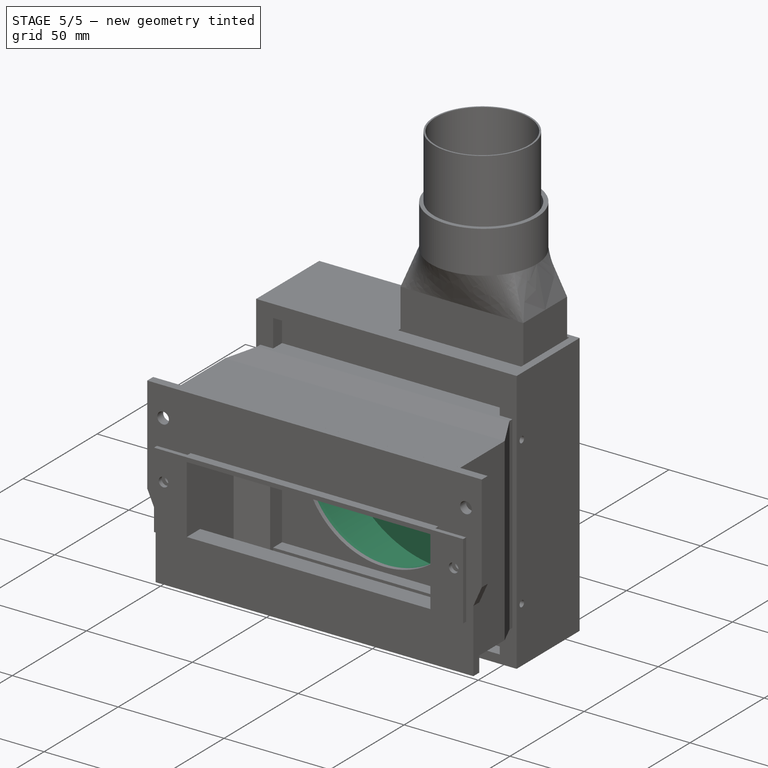
[diagram: stage 5 of 5 — iso view after this stage's code; geometry added in this stage tinted green]
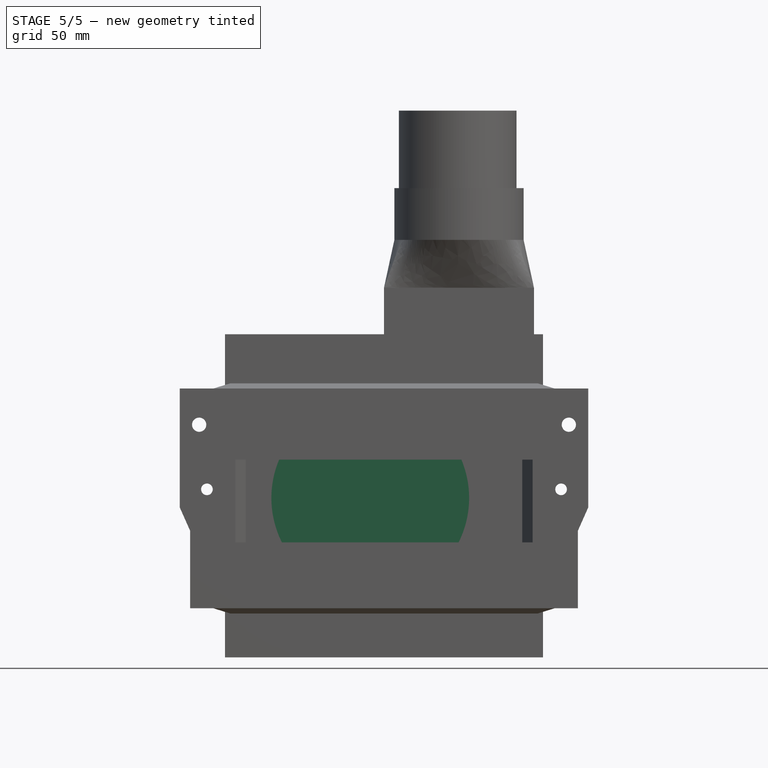
[diagram: stage 5 of 5 — front view after this stage's code; geometry added in this stage tinted green]
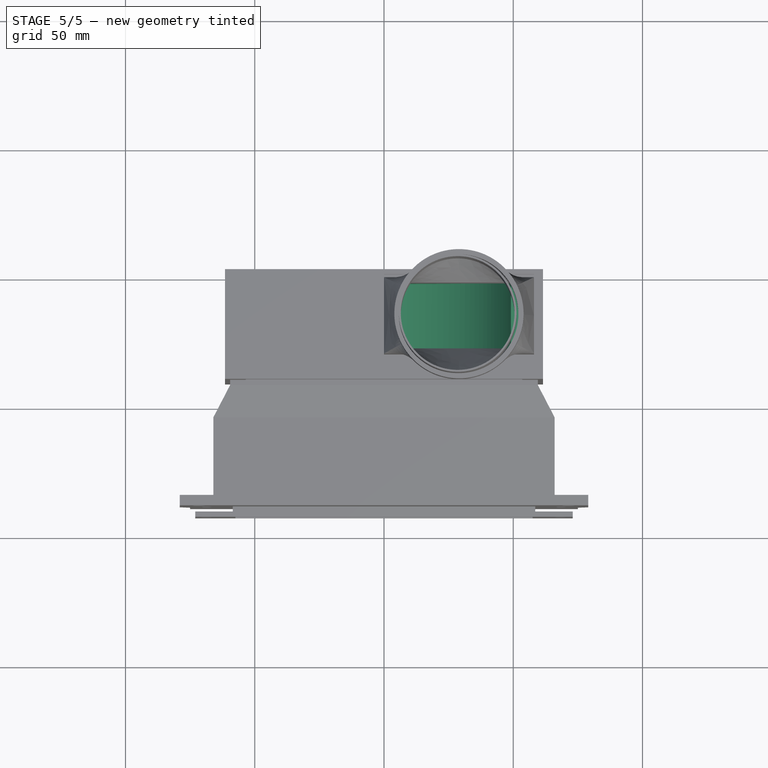
[diagram: stage 5 of 5 — top view after this stage's code; geometry added in this stage tinted green]
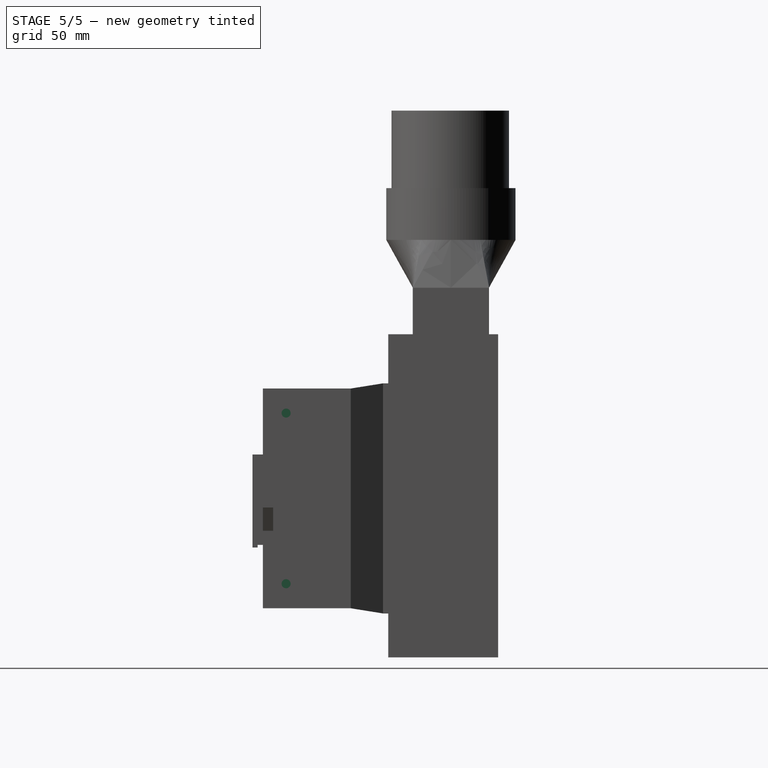
[diagram: stage 5 of 5 — right view after this stage's code; geometry added in this stage tinted green]
FEATURE [Sketcher::SketchObject] Sketch001  label="FanShellSketch"
  ExternalGeometry = -> [Pad]
  FullyConstrained = true
  MapMode = 5
  Placement = pos=(0,-5,-1.1e-15) rot=(1,0,0;1.5708rad)
  Support = -> [Pad]
  sketch-geometry (10):
    g0: Circle CenterX=-5.32 CenterY=0.16 CenterZ=0 NormalX=0 NormalY=0 NormalZ=1 AngleXU=0 Radius=38.25
    g1: LineSegment StartX=59.5 StartY=59.5 StartZ=0 EndX=-1.5 EndY=59.5 EndZ=0
    g2: LineSegment StartX=-1.5 StartY=59.5 StartZ=0 EndX=-1.5 EndY=51.5 EndZ=0
    g3: LineSegment StartX=59.5 StartY=-2.5 StartZ=0 EndX=59.5 EndY=59.5 EndZ=0
    g4: GeomPoint X=-59.5 Y=-2.5 Z=0
    g5: GeomPoint X=-1.5 Y=-59.5 Z=0
    g6: GeomPoint X=59.5 Y=-2.5 Z=0
    g7: ArcOfCircle CenterX=-7.68966 CenterY=0 CenterZ=0 NormalX=0 NormalY=0 NormalZ=1 AngleXU=0 Radius=51.8706 StartAngle=1.45118 EndAngle=3.18981
    g8: ArcOfCircle CenterX=-0.0344828 CenterY=0 CenterZ=0 NormalX=0 NormalY=0 NormalZ=1 AngleXU=0 Radius=59.518 StartAngle=3.18361 EndAngle=4.68776
    g9: ArcOfCircle CenterX=0.0327869 CenterY=0 CenterZ=0 NormalX=0 NormalY=0 NormalZ=1 AngleXU=0 Radius=59.5197 StartAngle=4.68663 EndAngle=6.24117
  constraints (26):
    c: DistanceX(g0,g-1) = 5.32  'inntakeWidthOffset'
    c: Diameter(g0) = 76.5  'inntakeDiameter'
    c: Coincident(g1,g2)
    c: Coincident(g3,g1)
    c: Horizontal(g1)
    c: Vertical(g2)
    c: Vertical(g3)
    c: Coincident(g1,g-7)
    c: DistanceX(g1,g1) = 61  'exhaustWidth'
    c: DistanceY(g2,g2) = 8  'exhaustHeight'
    c: PointOnObject(g4,g-6)
    c: DistanceY(g-6,g4) = 57
    c: PointOnObject(g5,g-8)
    c: Horizontal(g6,g4)
    c: Vertical(g5,g2)
    c: Coincident(g7,g2)
    c: Coincident(g7,g4)
    c: Coincident(g8,g7)
    c: Coincident(g9,g8)
    c: Coincident(g9,g6)
    c: PointOnObject(g7,g-1)
    c: Coincident(g8,g5)
    c: PointOnObject(g8,g-1)
    c: PointOnObject(g9,g-1)
    c: Coincident(g3,g9)
    c: DistanceY(g9,g0) = 0.16  'inntakeHeightOffset'
FEATURE [PartDesign::Pad] Pad001  label="FanShellPad"
  BaseFeature = -> Pad
  Direction = (0,-1,-2e-16)
  Length = 27.5
  Length2 = 10
  Placement = pos=(0,0,0) rot=(1,0,0;1.5708rad)
  Profile = -> Sketch001
  ReferenceAxis = -> Sketch001 [N_Axis]
  Type = 0
FEATURE [Sketcher::SketchObject] Sketch002  label="FanExhaustSketch"
  ExternalGeometry = -> [Pad001]
  FullyConstrained = true
  MapMode = 5
  Placement = pos=(0,0,59.5) rot=(0,0,1;3.14159rad)
  Support = -> [Pad001]
  sketch-geometry (4):
    g0: LineSegment StartX=-57.7 StartY=30.7 StartZ=0 EndX=-0.2 EndY=30.7 EndZ=0
    g1: LineSegment StartX=-0.2 StartY=30.7 StartZ=0 EndX=-0.2 EndY=1.8 EndZ=0
    g2: LineSegment StartX=-0.2 StartY=1.8 StartZ=0 EndX=-57.7 EndY=1.8 EndZ=0
    g3: LineSegment StartX=-57.7 StartY=1.8 StartZ=0 EndX=-57.7 EndY=30.7 EndZ=0
  constraints (12):
    c: Coincident(g0,g1)
    c: Coincident(g1,g2)
    c: Coincident(g2,g3)
    c: Coincident(g3,g0)
    c: Horizontal(g0)
    c: Horizontal(g2)
    c: Vertical(g1)
    c: Vertical(g3)
    c: DistanceY(g0,g-3) = 1.8
    c: DistanceX(g-3,g0) = 1.8
    c: DistanceY(g-1,g1) = 1.8
    c: DistanceX(g0,g0) = 57.5
FEATURE [PartDesign::Pocket] Pocket  label="FanExhaustPocket"
  BaseFeature = -> Pad001
  Direction = (0,2e-16,-1)
  Length = 50
  Length2 = 5
  Placement = pos=(0,0,0) rot=(1,0,0;1.5708rad)
  Profile = -> Sketch002
  ReferenceAxis = -> Sketch002 [N_Axis]
  Type = 0
FEATURE [Sketcher::SketchObject] Sketch003  label="FanInternalSketch"
  ExternalGeometry = -> [Pocket]
  FullyConstrained = true
  MapMode = 5
  Placement = pos=(0,-1.8,0) rot=(1,0,0;1.5708rad)
  Support = -> [Pocket]
  sketch-geometry (1):
    g0: Circle CenterX=0 CenterY=0 CenterZ=0 NormalX=0 NormalY=0 NormalZ=1 AngleXU=0 Radius=50
  constraints (2):
    c: Coincident(g0,g-1)
    c: Diameter(g0) = 100
FEATURE [PartDesign::Pocket] Pocket001  label="FanInternalPocket"
  BaseFeature = -> Pocket
  Direction = (0,1,2e-16)
  Length = 29
  Length2 = 5
  Placement = pos=(0,0,0) rot=(1,0,0;1.5708rad)
  Profile = -> Sketch003
  ReferenceAxis = -> Sketch003 [N_Axis]
  Reversed = true
  Type = 0
FEATURE [PartDesign::Fillet] Fillet
  Base = -> Pocket001 [Edge12,Edge6,Edge1]
  BaseFeature = -> Pocket001
  Placement = pos=(0,0,0) rot=(1,0,0;1.5708rad)
  Radius = 4
  SupportTransform = false
  UseAllEdges = false
FEATURE [Sketcher::SketchObject] Sketch030  label="AttachementInsertSketch"
  ExternalGeometry = -> [Pad019]
  FullyConstrained = true
  MapMode = 5
  Placement = pos=(-61.9,0,0) rot=(-0.707107,0,0.707107;3.14159rad)
  Support = -> [Pad019]
  sketch-geometry (1):
    g0: Circle CenterX=32.95 CenterY=80 CenterZ=0 NormalX=0 NormalY=0 NormalZ=1 AngleXU=0 Radius=2.2
  constraints (2):
    c: Diameter(g0) = 4.4
    c: Symmetric(g-4,g-3,g0)
FEATURE [PartDesign::Pocket] Pocket010  label="AttechementInsertPocket"
  BaseFeature = -> Pad019
  Direction = (1,0,-2e-16)
  Length = 4
  Length2 = 5
  Placement = pos=(0,0,0) rot=(1,0,0;1.5708rad)
  Profile = -> Sketch030
  ReferenceAxis = -> Sketch030 [N_Axis]
  Type = 0
FEATURE [PartDesign::Fillet] Fillet001  label="AttachementWartFillet"
  Base = -> Pocket010 [Edge97,Edge95]
  BaseFeature = -> Pocket010
  Placement = pos=(0,0,0) rot=(1,0,0;1.5708rad)
  Radius = 3
  SupportTransform = false
  UseAllEdges = false
FEATURE [PartDesign::Mirrored] Mirrored001
  MirrorPlane = -> Sketch029 [H_Axis]
  Placement = pos=(0,0,0) rot=(1,0,0;1.5708rad)
FEATURE [PartDesign::Mirrored] Mirrored
  MirrorPlane = -> Sketch029 [V_Axis]
  Placement = pos=(0,0,0) rot=(1,0,0;1.5708rad)
FEATURE [PartDesign::MultiTransform] MultiTransform  label="AttacmementWartTransform"
  BaseFeature = -> Fillet001
  Originals = -> [Pad019,Pocket010,Fillet001]
  Placement = pos=(0,0,0) rot=(1,0,0;1.5708rad)
  Transformations = -> [Mirrored,Mirrored001]
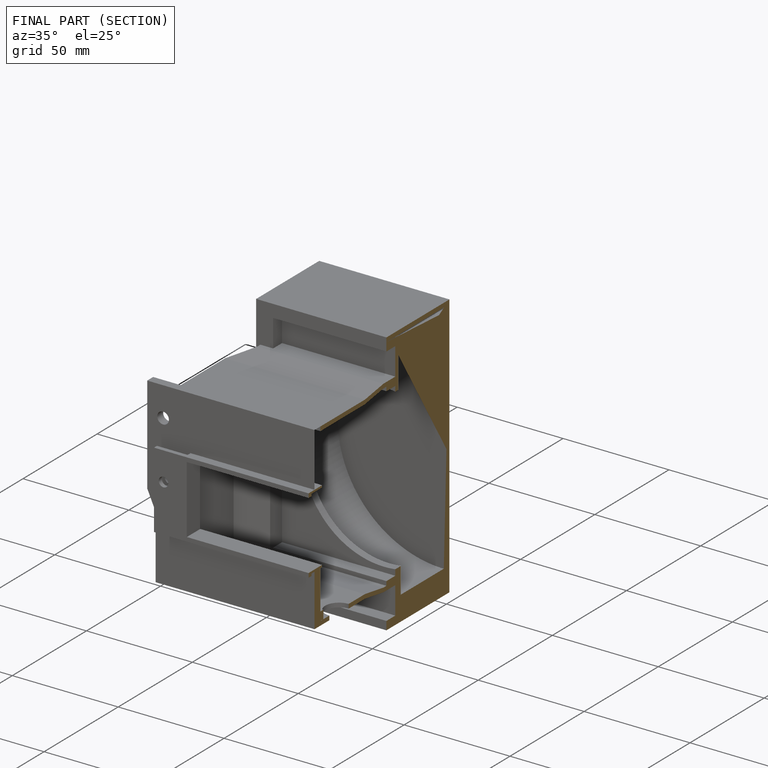
[diagram: finished part — half-section view (interior)]
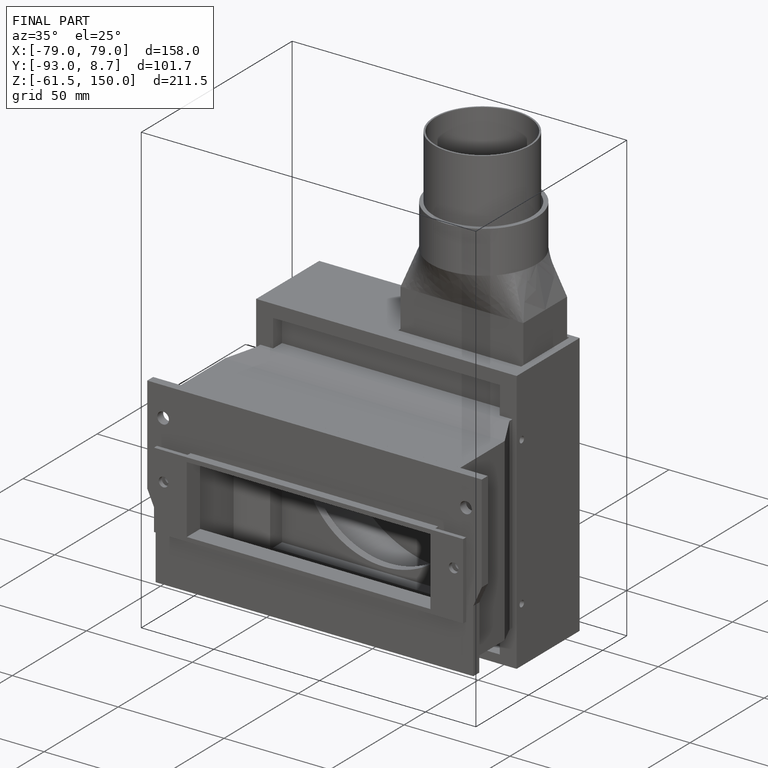
[diagram: finished part — iso view with bounding-box wireframe]
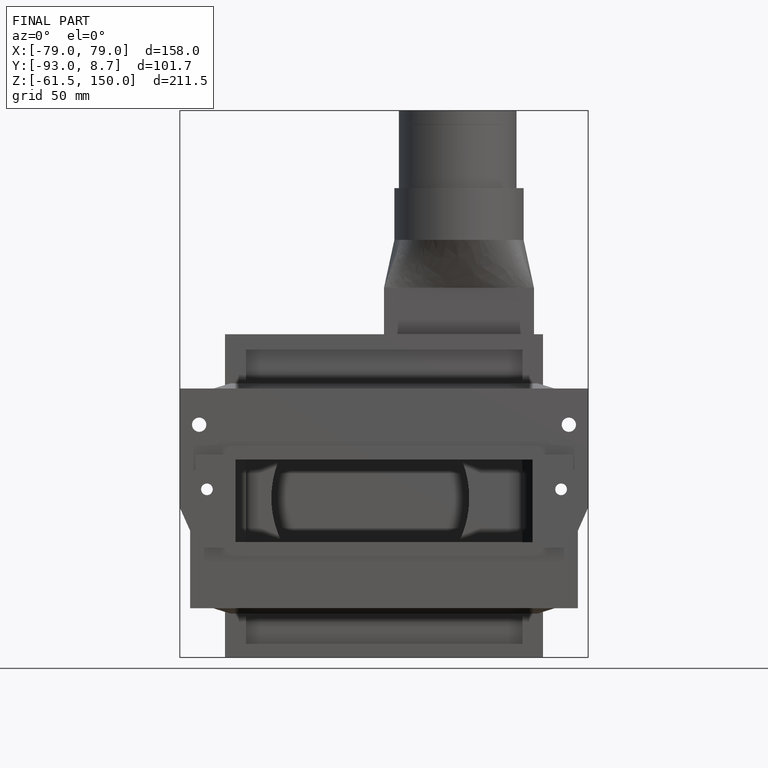
[diagram: finished part — front view with bounding-box wireframe]
